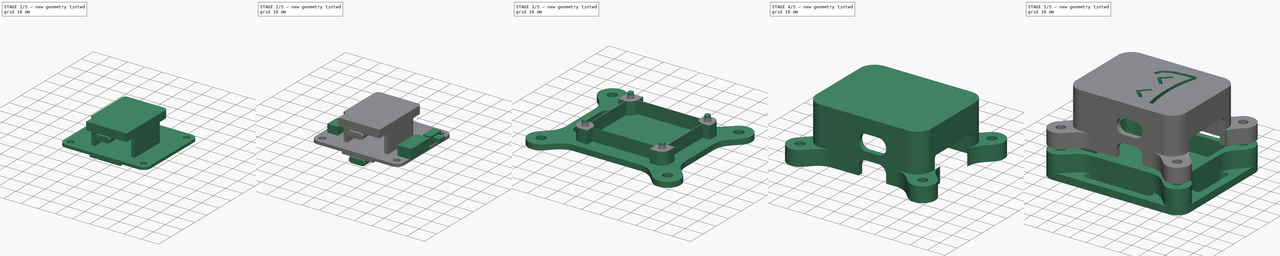
[diagram: build sequence overview — one tinted view per stage of 5, left to right]
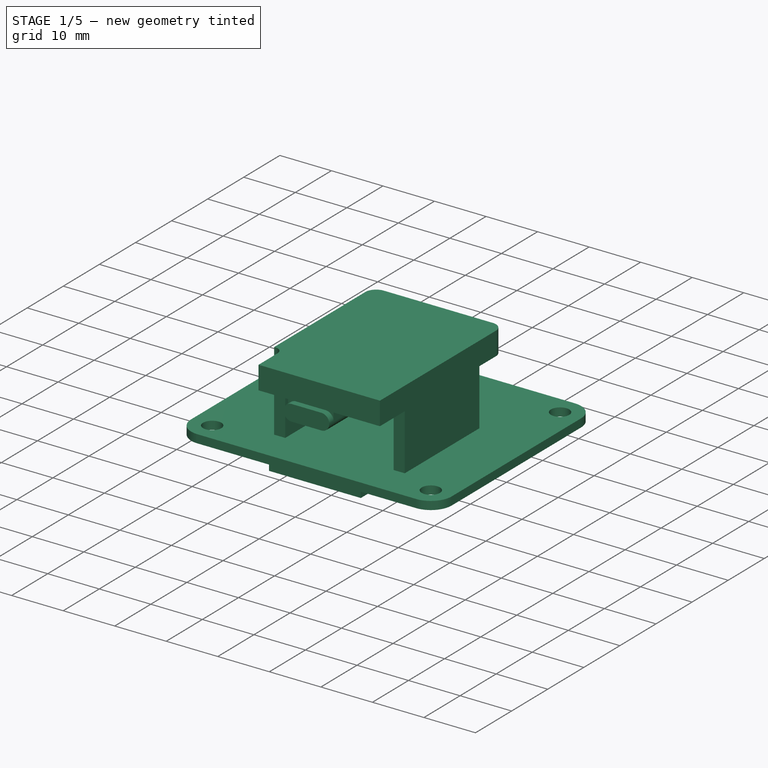
[diagram: stage 1 of 5 — iso view after this stage's code; geometry added in this stage tinted green]
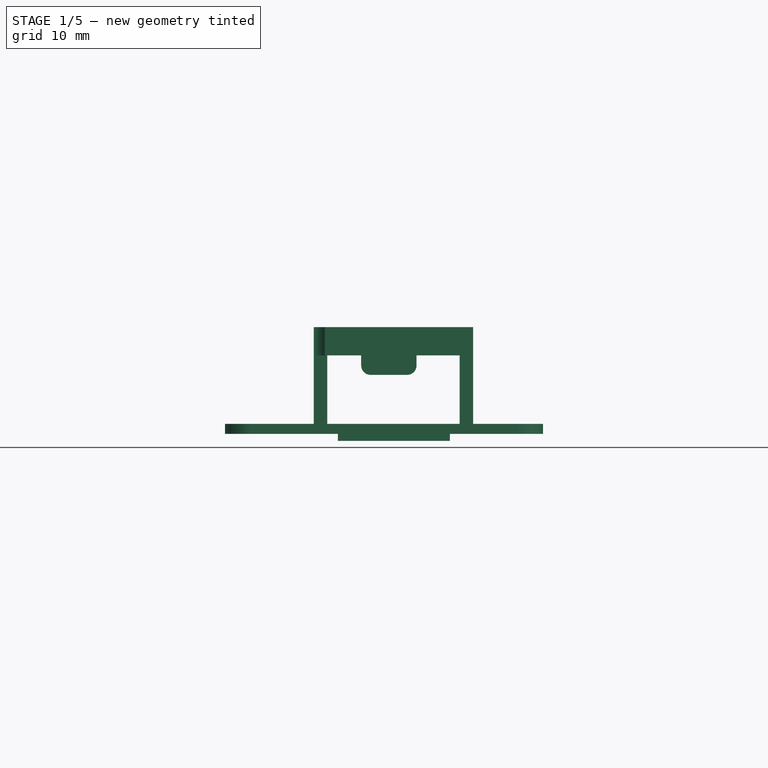
[diagram: stage 1 of 5 — front view after this stage's code; geometry added in this stage tinted green]
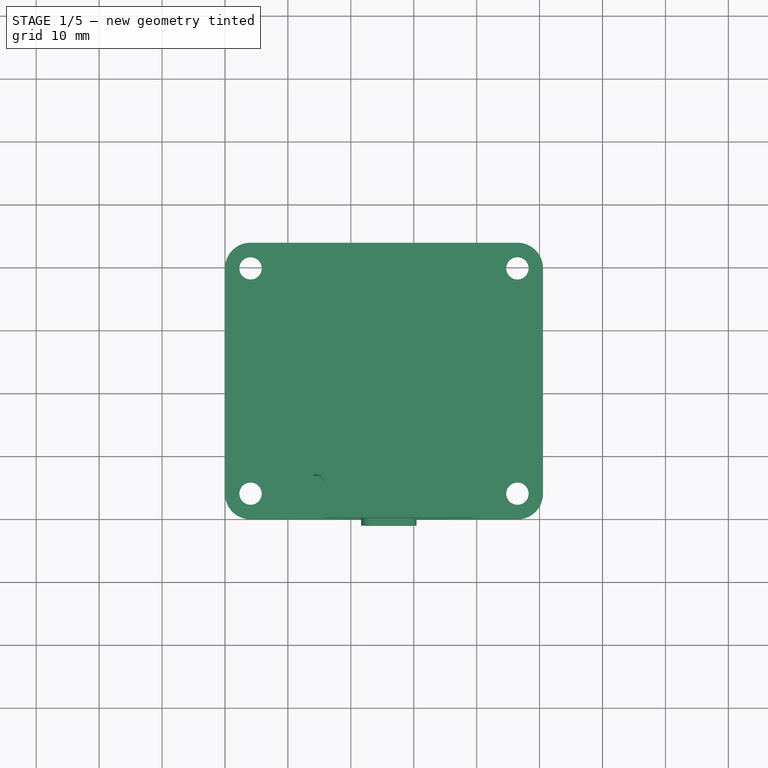
[diagram: stage 1 of 5 — top view after this stage's code; geometry added in this stage tinted green]
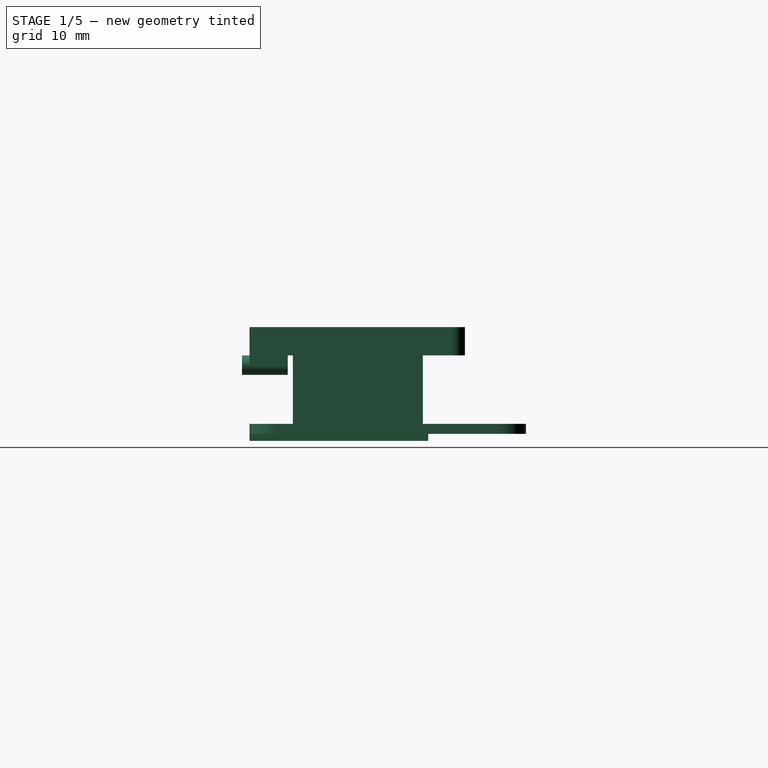
[diagram: stage 1 of 5 — right view after this stage's code; geometry added in this stage tinted green]
FCSTD DOCUMENT  (FreeCAD 0.21R33771 (Git))
Label: case
License: All rights reserved
LicenseURL: https://en.wikipedia.org/wiki/All_rights_reserved
objects: Sketcher::SketchObject×26, PartDesign::Pad×20, PartDesign::Pocket×7, PartDesign::ShapeBinder×7, PartDesign::Body×4, Part::Feature×3, PartDesign::Fillet×2, PartDesign::Plane×1, Part::FeaturePython×1
note: 100 computed .brp shape members not serialized (recipe doc carries the construction recipe); baked Part::Feature solids carry a one-line shape summary decoded from their .brp

FEATURE [Sketcher::SketchObject] Sketch  label="MainPCB"
  FullyConstrained = true
  MapMode = 5
  Support = -> [XY_Plane001]
  sketch-geometry (12):
    g0: LineSegment StartX=4.064 StartY=0 StartZ=0 EndX=46.482 EndY=0 EndZ=0
    g1: LineSegment StartX=50.546 StartY=4.064 StartZ=0 EndX=50.546 EndY=39.878 EndZ=0
    g2: LineSegment StartX=46.482 StartY=43.942 StartZ=0 EndX=4.064 EndY=43.942 EndZ=0
    g3: LineSegment StartX=0 StartY=39.878 StartZ=0 EndX=0 EndY=4.064 EndZ=0
    g4: ArcOfCircle CenterX=4.064 CenterY=39.878 CenterZ=0 NormalX=0 NormalY=0 NormalZ=1 AngleXU=0 Radius=4.064 StartAngle=1.5708 EndAngle=3.14159
    g5: ArcOfCircle CenterX=46.482 CenterY=39.878 CenterZ=0 NormalX=0 NormalY=0 NormalZ=1 AngleXU=0 Radius=4.064 StartAngle=0 EndAngle=1.5708
    g6: ArcOfCircle CenterX=46.482 CenterY=4.064 CenterZ=0 NormalX=0 NormalY=0 NormalZ=1 AngleXU=0 Radius=4.064 StartAngle=4.71239 EndAngle=6.28319
    g7: ArcOfCircle CenterX=4.064 CenterY=4.064 CenterZ=0 NormalX=0 NormalY=0 NormalZ=1 AngleXU=0 Radius=4.064 StartAngle=3.14159 EndAngle=4.71239
    g8: Circle CenterX=4.064 CenterY=39.878 CenterZ=0 NormalX=0 NormalY=0 NormalZ=1 AngleXU=0 Radius=1.778
    g9: Circle CenterX=46.482 CenterY=39.878 CenterZ=0 NormalX=0 NormalY=0 NormalZ=1 AngleXU=0 Radius=1.778
    g10: Circle CenterX=46.482 CenterY=4.064 CenterZ=0 NormalX=0 NormalY=0 NormalZ=1 AngleXU=0 Radius=1.778
    g11: Circle CenterX=4.064 CenterY=4.064 CenterZ=0 NormalX=0 NormalY=0 NormalZ=1 AngleXU=0 Radius=1.778
  constraints (28):
    c: Horizontal(g0)
    c: Horizontal(g2)
    c: Vertical(g1)
    c: Vertical(g3)
    c: Tangent(g3,g4) = -1.5708
    c: Tangent(g2,g4) = -1.5708
    c: Distance(g4,g2) = 4.064
    c: Tangent(g2,g5) = -1.5708
    c: Tangent(g1,g5) = -1.5708
    c: Tangent(g1,g6) = -1.5708
    c: Tangent(g0,g6) = -1.5708
    c: Tangent(g0,g7) = -1.5708
    c: Tangent(g3,g7) = -1.5708
    c: Distance(g5,g2) = 4.064
    c: Distance(g7,g0) = 4.064
    c: Distance(g6,g0) = 4.064
    c: Distance(g2,g0) = 43.942
    c: Distance(g3,g1) = 50.546
    c: Coincident(g8,g4)
    c: Coincident(g9,g5)
    c: Coincident(g10,g6)
    c: Coincident(g11,g7)
    c: Radius(g9) = 1.778
    c: Radius(g8) = 1.778
    c: Radius(g11) = 1.778
    c: Radius(g10) = 1.778
    c: DistanceX(g-1,g3) = 0
    c: DistanceY(g-1,g0) = 0
FEATURE [PartDesign::Pad] Pad  label="MainPCB.Pad"
  Direction = (0,0,1)
  Length = 1.6
  Length2 = 10
  Profile = -> Sketch
  ReferenceAxis = -> Sketch [N_Axis]
  Type = 0
FEATURE [Sketcher::SketchObject] Sketch001  label="D1Header"
  ExternalGeometry = -> [Pad]
  FullyConstrained = true
  MapMode = 5
  Placement = pos=(0,0,1.6) rot=(0,0,1;0rad)
  Support = -> [Pad]
  sketch-geometry (8):
    g0: LineSegment StartX=14.1 StartY=27.54 StartZ=0 EndX=14.1 EndY=6.88 EndZ=0
    g1: LineSegment StartX=16.26 StartY=27.54 StartZ=0 EndX=16.26 EndY=6.88 EndZ=0
    g2: LineSegment StartX=37.286 StartY=27.54 StartZ=0 EndX=37.286 EndY=6.88 EndZ=0
    g3: LineSegment StartX=39.446 StartY=27.54 StartZ=0 EndX=39.446 EndY=6.88 EndZ=0
    g4: LineSegment StartX=37.286 StartY=27.54 StartZ=0 EndX=39.446 EndY=27.54 EndZ=0
    g5: LineSegment StartX=39.446 StartY=6.88 StartZ=0 EndX=37.286 EndY=6.88 EndZ=0
    g6: LineSegment StartX=16.26 StartY=6.88 StartZ=0 EndX=14.1 EndY=6.88 EndZ=0
    g7: LineSegment StartX=14.1 StartY=27.54 StartZ=0 EndX=16.26 EndY=27.54 EndZ=0
  constraints (24):
    c: Vertical(g0)
    c: Vertical(g1)
    c: Vertical(g2)
    c: Vertical(g3)
    c: Coincident(g4,g2)
    c: Coincident(g4,g3)
    c: Coincident(g5,g3)
    c: Coincident(g5,g2)
    c: Coincident(g6,g1)
    c: Coincident(g6,g0)
    c: Horizontal(g6)
    c: Horizontal(g5)
    c: Horizontal(g4)
    c: Distance(g0,g-3) = 14.1
    c: Distance(g3,g-5) = 11.1
    c: Distance(g4) = 2.16
    c: Distance(g1) = 20.66
    c: Distance(g2) = 20.66
    c: Distance(g0,g-1) = 6.88
    c: Distance(g2,g-4) = 6.88
    c: Coincident(g7,g0)
    c: Coincident(g7,g1)
    c: Horizontal(g7)
    c: DistanceX(g0,g1) = 2.16
FEATURE [PartDesign::Pad] Pad001  label="D1Header.Pad"
  BaseFeature = -> Pad
  Direction = (0,0,1)
  Length = 10.88
  Length2 = 10
  Profile = -> Sketch001
  ReferenceAxis = -> Sketch001 [N_Axis]
  Type = 0
  expr: Length = 8.34 mm + 2.54 mm
FEATURE [Sketcher::SketchObject] Sketch002  label="D1Board"
  ExternalGeometry = -> [Pad001]
  FullyConstrained = true
  MapMode = 5
  Placement = pos=(0,0,12.48) rot=(0,0,1;0rad)
  Support = -> [Pad001]
  sketch-geometry (12):
    g0: LineSegment StartX=14.1 StartY=6.88 StartZ=0 EndX=14.1 EndY=32.15 EndZ=0
    g1: LineSegment StartX=14.1 StartY=6.88 StartZ=0 EndX=14.3 EndY=6.88 EndZ=0
    g2: LineSegment StartX=15.9 StartY=5.28 StartZ=0 EndX=15.9 EndY=0 EndZ=0
    g3: LineSegment StartX=39.446 StartY=0 StartZ=0 EndX=39.446 EndY=32.15 EndZ=0
    g4: LineSegment StartX=15.9 StartY=0 StartZ=0 EndX=39.446 EndY=0 EndZ=0
    g5: LineSegment StartX=16.2 StartY=34.25 StartZ=0 EndX=37.346 EndY=34.25 EndZ=0
    g6: ArcOfCircle CenterX=14.3 CenterY=5.28 CenterZ=0 NormalX=0 NormalY=0 NormalZ=1 AngleXU=0 Radius=1.6 StartAngle=0 EndAngle=1.5708
    g7: GeomPoint X=15.9 Y=6.88 Z=0
    g8: ArcOfCircle CenterX=16.2 CenterY=32.15 CenterZ=0 NormalX=0 NormalY=0 NormalZ=1 AngleXU=0 Radius=2.1 StartAngle=1.5708 EndAngle=3.14159
    g9: GeomPoint X=14.1 Y=34.25 Z=0
    g10: ArcOfCircle CenterX=37.346 CenterY=32.15 CenterZ=0 NormalX=0 NormalY=0 NormalZ=1 AngleXU=0 Radius=2.1 StartAngle=4.04e-13 EndAngle=1.5708
    g11: GeomPoint X=39.446 Y=34.25 Z=0
  constraints (29):
    c: Vertical(g0)
    c: Coincident(g0,g-3)
    c: Coincident(g1,g0)
    c: Horizontal(g1)
    c: Distance(g1,g7) = 1.8
    c: PointOnObject(g2,g-5)
    c: Vertical(g2)
    c: PointOnObject(g3,g-5)
    c: Vertical(g3)
    c: PointOnObject(g-4,g3)
    c: Coincident(g4,g2)
    c: Coincident(g4,g3)
    c: Horizontal(g5)
    c: PointOnObject(g7,g1)
    c: PointOnObject(g7,g2)
    c: Tangent(g1,g6) = 1.5708
    c: Tangent(g2,g6) = 1.5708
    c: DistanceX(g0,g6) = 0.2
    c: PointOnObject(g9,g0)
    c: PointOnObject(g9,g5)
    c: Tangent(g0,g8) = 1.5708
    c: Tangent(g5,g8) = 1.5708
    c: PointOnObject(g11,g3)
    c: PointOnObject(g11,g5)
    c: Tangent(g3,g10) = -1.5708
    c: Tangent(g5,g10) = 1.5708
    c: Radius(g8) = 2.1
    c: Radius(g10) = 2.1
    c: Distance(g5,g4) = 34.25
FEATURE [PartDesign::Pad] Pad002  label="D1Board.Pad"
  BaseFeature = -> Pad001
  Direction = (0,0,1)
  Length = 4.48
  Length2 = 10
  Profile = -> Sketch002
  ReferenceAxis = -> Sketch002 [N_Axis]
  Type = 0
FEATURE [Sketcher::SketchObject] Sketch003  label="D1Port"
  ExternalGeometry = -> [Pad002]
  FullyConstrained = true
  MapMode = 5
  Placement = pos=(0,0,12.48) rot=(1,0,0;3.14159rad)
  Support = -> [Pad002]
  sketch-geometry (4):
    g0: LineSegment StartX=21.646 StartY=-6.08 StartZ=0 EndX=30.446 EndY=-6.08 EndZ=0
    g1: LineSegment StartX=30.446 StartY=-6.08 StartZ=0 EndX=30.446 EndY=1.2 EndZ=0
    g2: LineSegment StartX=30.446 StartY=1.2 StartZ=0 EndX=21.646 EndY=1.2 EndZ=0
    g3: LineSegment StartX=21.646 StartY=-6.08 StartZ=0 EndX=21.646 EndY=1.2 EndZ=0
  constraints (12):
    c: Horizontal(g0)
    c: Distance(g0) = 8.8
    c: Coincident(g1,g0)
    c: Vertical(g1)
    c: Distance(g1) = 7.28
    c: Coincident(g2,g1)
    c: Horizontal(g2)
    c: Coincident(g3,g0)
    c: Coincident(g3,g2)
    c: Vertical(g3)
    c: Distance(g2,g-5) = 1.2
    c: Distance(g-5,g1) = 9
FEATURE [PartDesign::Pad] Pad003  label="D1Port.Pad"
  BaseFeature = -> Pad002
  Direction = (0,0,-1)
  Length = 3.1
  Length2 = 10
  Profile = -> Sketch003
  ReferenceAxis = -> Sketch003 [N_Axis]
  Type = 0
FEATURE [PartDesign::Fillet] Fillet  label="D1Port.Fillet"
  Base = -> Pad003 [Edge101,Edge96,Edge97,Edge102]
  BaseFeature = -> Pad003
  Radius = 1.5
  SupportTransform = false
  UseAllEdges = false
FEATURE [Sketcher::SketchObject] Sketch004  label="ChargingBoard"
  ExternalGeometry = -> [Fillet]
  FullyConstrained = true
  MapMode = 5
  Placement = pos=(0,0,0) rot=(1,0,0;3.14159rad)
  Support = -> [Fillet]
  sketch-geometry (4):
    g0: LineSegment StartX=17.937 StartY=0 StartZ=0 EndX=17.937 EndY=-28.4 EndZ=0
    g1: LineSegment StartX=35.737 StartY=0 StartZ=0 EndX=35.737 EndY=-28.4 EndZ=0
    g2: LineSegment StartX=35.737 StartY=-28.4 StartZ=0 EndX=17.937 EndY=-28.4 EndZ=0
    g3: LineSegment StartX=17.937 StartY=0 StartZ=0 EndX=35.737 EndY=0 EndZ=0
  constraints (12):
    c: PointOnObject(g0,g-3)
    c: Vertical(g0)
    c: PointOnObject(g1,g-3)
    c: Vertical(g1)
    c: Coincident(g2,g1)
    c: Coincident(g2,g0)
    c: Horizontal(g2)
    c: Distance(g2) = 17.8
    c: Distance(g0) = 28.4
    c: Coincident(g3,g0)
    c: Coincident(g3,g1)
    c: Distance(g-4,g1) = 14.809
FEATURE [PartDesign::Pad] Pad004  label="ChargingBoard.Pad"
  BaseFeature = -> Fillet
  Direction = (0,0,-1)
  Length = 1.1
  Length2 = 10
  Profile = -> Sketch004
  ReferenceAxis = -> Sketch004 [N_Axis]
  Type = 0
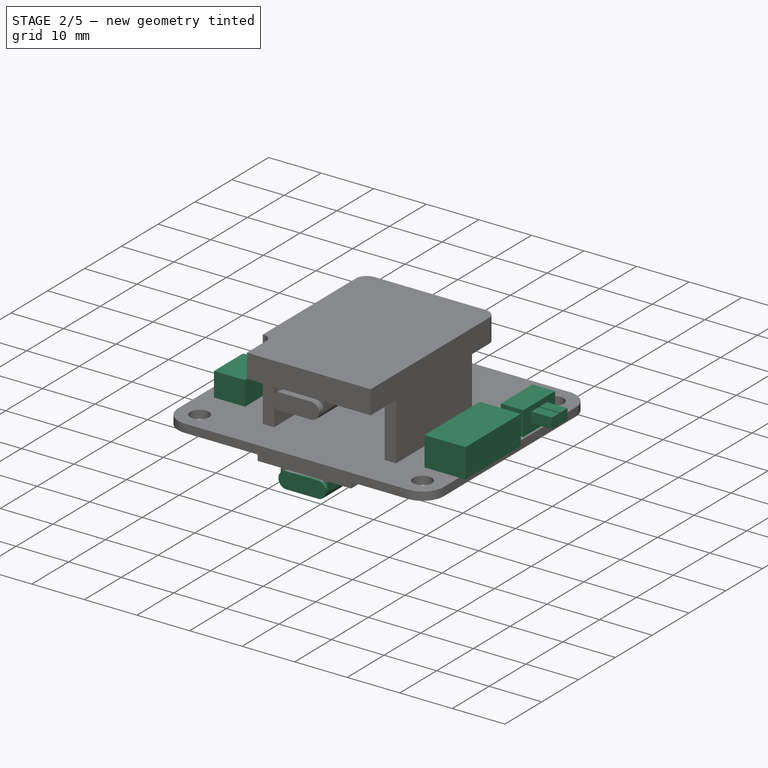
[diagram: stage 2 of 5 — iso view after this stage's code; geometry added in this stage tinted green]
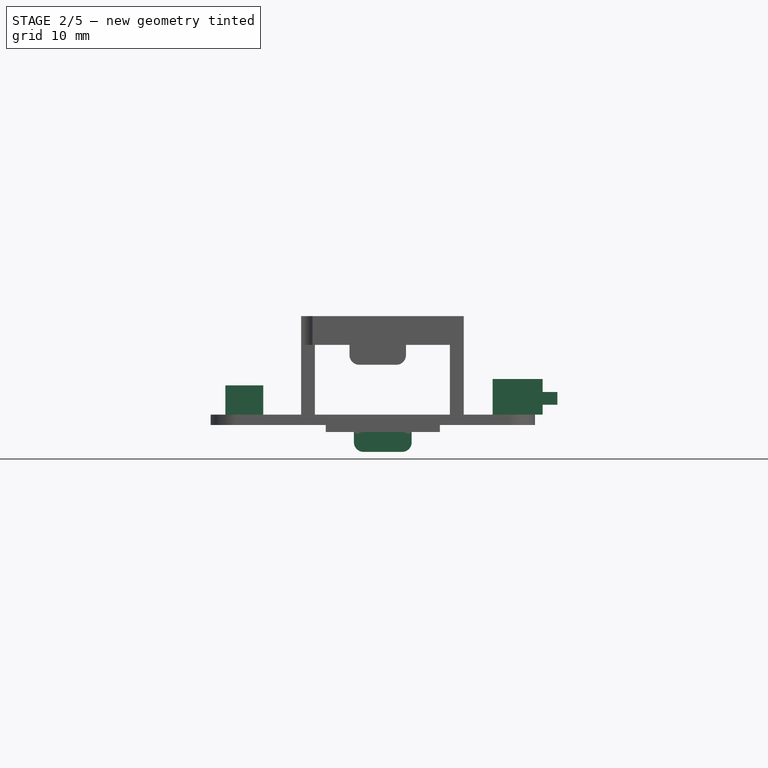
[diagram: stage 2 of 5 — front view after this stage's code; geometry added in this stage tinted green]
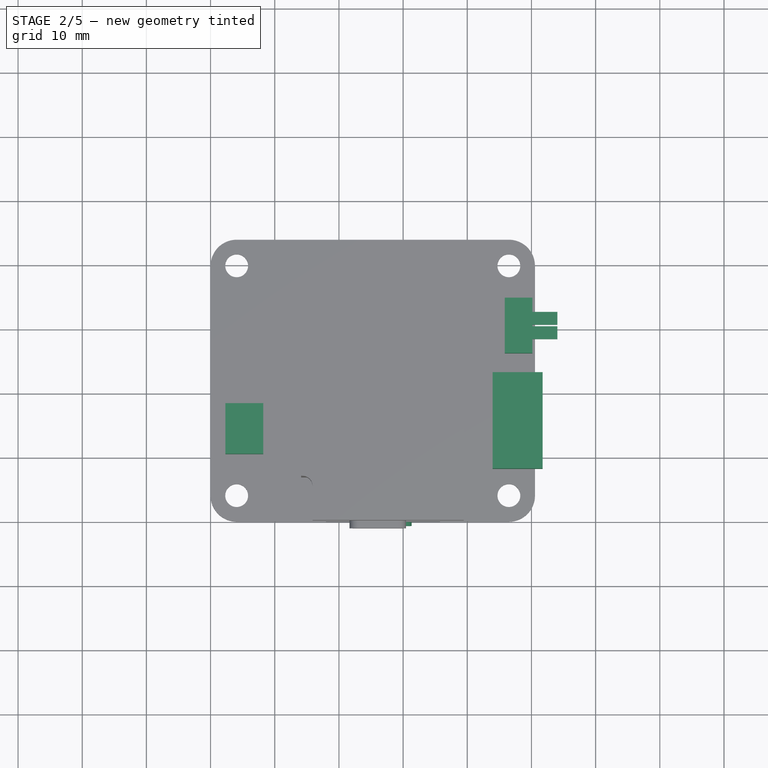
[diagram: stage 2 of 5 — top view after this stage's code; geometry added in this stage tinted green]
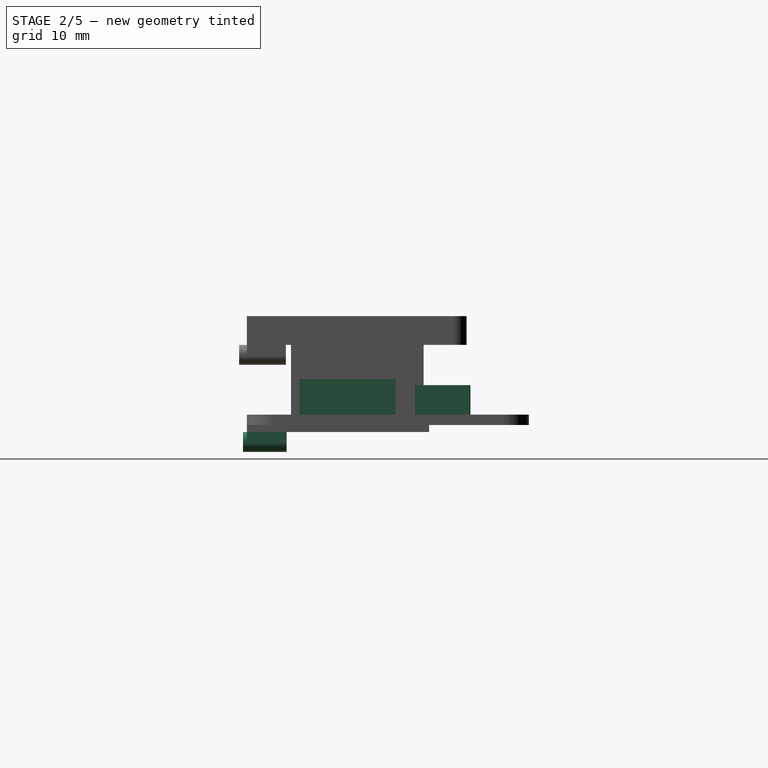
[diagram: stage 2 of 5 — right view after this stage's code; geometry added in this stage tinted green]
FEATURE [Sketcher::SketchObject] Sketch005  label="ChargingPort"
  ExternalGeometry = -> [Pad004]
  FullyConstrained = true
  MapMode = 5
  Placement = pos=(0,0,-1.1) rot=(1,0,0;3.14159rad)
  Support = -> [Pad004]
  sketch-geometry (6):
    g0: LineSegment StartX=22.337 StartY=-6.2 StartZ=0 EndX=22.337 EndY=0.6 EndZ=0
    g1: LineSegment StartX=22.337 StartY=-6.2 StartZ=0 EndX=31.337 EndY=-6.2 EndZ=0
    g2: LineSegment StartX=22.337 StartY=0.6 StartZ=0 EndX=31.337 EndY=0.6 EndZ=0
    g3: LineSegment StartX=31.337 StartY=0.6 StartZ=0 EndX=31.337 EndY=-6.2 EndZ=0
    g4: LineSegment StartX=17.937 StartY=0 StartZ=0 EndX=22.337 EndY=0 EndZ=0
    g5: LineSegment StartX=35.737 StartY=0 StartZ=0 EndX=31.337 EndY=0 EndZ=0
  constraints (18):
    c: Vertical(g0)
    c: Distance(g0) = 6.8
    c: Coincident(g1,g0)
    c: Horizontal(g1)
    c: Distance(g1) = 9
    c: Coincident(g2,g0)
    c: Horizontal(g2)
    c: Coincident(g3,g2)
    c: Coincident(g3,g1)
    c: Vertical(g3)
    c: Distance(g2,g-4) = 0.6
    c: Coincident(g4,g-4)
    c: PointOnObject(g4,g0)
    c: Horizontal(g4)
    c: Coincident(g5,g-5)
    c: PointOnObject(g5,g3)
    c: Horizontal(g5)
    c: Equal(g5,g4)
FEATURE [PartDesign::Pad] Pad005  label="ChargingPort.Pad"
  BaseFeature = -> Pad004
  Direction = (0,0,-1)
  Length = 3.1
  Length2 = 10
  Profile = -> Sketch005
  ReferenceAxis = -> Sketch005 [N_Axis]
  Type = 0
FEATURE [PartDesign::Fillet] Fillet001  label="ChargingPort.Fillet"
  Base = -> Pad005 [Edge137,Edge139,Edge142,Edge146]
  BaseFeature = -> Pad005
  Radius = 1.5
  SupportTransform = false
  UseAllEdges = false
FEATURE [Sketcher::SketchObject] Sketch006  label="JST-XH"
  ExternalGeometry = -> [Fillet001]
  FullyConstrained = true
  MapMode = 5
  Placement = pos=(0,0,1.6) rot=(0,0,1;0rad)
  Support = -> [Fillet001]
  sketch-geometry (4):
    g0: LineSegment StartX=43.946 StartY=8.2 StartZ=0 EndX=51.746 EndY=8.2 EndZ=0
    g1: LineSegment StartX=43.946 StartY=8.2 StartZ=0 EndX=43.946 EndY=23.2 EndZ=0
    g2: LineSegment StartX=43.946 StartY=23.2 StartZ=0 EndX=51.746 EndY=23.2 EndZ=0
    g3: LineSegment StartX=51.746 StartY=23.2 StartZ=0 EndX=51.746 EndY=8.2 EndZ=0
  constraints (12):
    c: Horizontal(g0)
    c: Distance(g-3,g0) = 8.2
    c: Distance(g0) = 7.8
    c: Coincident(g1,g0)
    c: Vertical(g1)
    c: Distance(g1) = 15
    c: Coincident(g2,g1)
    c: Horizontal(g2)
    c: Coincident(g3,g2)
    c: Coincident(g3,g0)
    c: Vertical(g3)
    c: Distance(g0,g-5) = 1.2
FEATURE [PartDesign::Pad] Pad006  label="JST-XH.Pad"
  BaseFeature = -> Fillet001
  Direction = (0,0,1)
  Length = 5.56
  Length2 = 10
  Profile = -> Sketch006
  ReferenceAxis = -> Sketch006 [N_Axis]
  Type = 0
FEATURE [Sketcher::SketchObject] Sketch007  label="SwitchBody"
  ExternalGeometry = -> [Pad006]
  FullyConstrained = true
  MapMode = 5
  Placement = pos=(0,0,1.6) rot=(0,0,1;0rad)
  Support = -> [Pad006]
  sketch-geometry (4):
    g0: LineSegment StartX=45.846 StartY=34.842 StartZ=0 EndX=45.846 EndY=26.202 EndZ=0
    g1: LineSegment StartX=45.846 StartY=34.842 StartZ=0 EndX=50.146 EndY=34.842 EndZ=0
    g2: LineSegment StartX=50.146 StartY=34.842 StartZ=0 EndX=50.146 EndY=26.202 EndZ=0
    g3: LineSegment StartX=50.146 StartY=26.202 StartZ=0 EndX=45.846 EndY=26.202 EndZ=0
  constraints (12):
    c: Vertical(g0)
    c: Distance(g0) = 8.64
    c: Coincident(g1,g0)
    c: Horizontal(g1)
    c: Distance(g-3,g1) = 9.1
    c: Distance(g1) = 4.3
    c: Coincident(g2,g1)
    c: Vertical(g2)
    c: Coincident(g3,g2)
    c: Coincident(g3,g0)
    c: Horizontal(g3)
    c: Distance(g1,g-4) = 0.4
FEATURE [PartDesign::Pad] Pad007  label="SwitchBody.Pad"
  BaseFeature = -> Pad006
  Direction = (0,0,1)
  Length = 4.6
  Length2 = 10
  Profile = -> Sketch007
  ReferenceAxis = -> Sketch007 [N_Axis]
  Type = 0
FEATURE [Sketcher::SketchObject] Sketch008  label="SwitchPositions"
  ExternalGeometry = -> [Pad007]
  FullyConstrained = true
  MapMode = 5
  Placement = pos=(50.146,0,0) rot=(0.57735,0.57735,0.57735;2.0944rad)
  Support = -> [Pad007]
  sketch-geometry (12):
    g0: LineSegment StartX=30.642 StartY=5.14 StartZ=0 EndX=32.642 EndY=5.14 EndZ=0
    g1: LineSegment StartX=32.642 StartY=5.14 StartZ=0 EndX=32.642 EndY=3.14 EndZ=0
    g2: LineSegment StartX=32.642 StartY=3.14 StartZ=0 EndX=30.642 EndY=3.14 EndZ=0
    g3: LineSegment StartX=30.642 StartY=3.14 StartZ=0 EndX=30.642 EndY=5.14 EndZ=0
    g4: LineSegment StartX=28.402 StartY=5.14 StartZ=0 EndX=28.402 EndY=3.14 EndZ=0
    g5: LineSegment StartX=28.402 StartY=5.14 StartZ=0 EndX=30.402 EndY=5.14 EndZ=0
    g6: LineSegment StartX=30.402 StartY=5.14 StartZ=0 EndX=30.402 EndY=3.14 EndZ=0
    g7: LineSegment StartX=30.402 StartY=3.14 StartZ=0 EndX=28.402 EndY=3.14 EndZ=0
    g8: LineSegment StartX=32.642 StartY=5.14 StartZ=0 EndX=34.842 EndY=5.14 EndZ=0
    g9: LineSegment StartX=28.402 StartY=5.14 StartZ=0 EndX=26.202 EndY=5.14 EndZ=0
    g10: LineSegment StartX=32.642 StartY=5.14 StartZ=0 EndX=32.642 EndY=6.2 EndZ=0
    g11: LineSegment StartX=28.402 StartY=5.14 StartZ=0 EndX=28.402 EndY=6.2 EndZ=0
  constraints (36):
    c: Horizontal(g0)
    c: Coincident(g1,g0)
    c: Vertical(g1)
    c: Coincident(g2,g1)
    c: Horizontal(g2)
    c: Coincident(g3,g2)
    c: Coincident(g3,g0)
    c: Vertical(g3)
    c: Vertical(g4)
    c: Coincident(g5,g4)
    c: Horizontal(g5)
    c: Coincident(g6,g5)
    c: Vertical(g6)
    c: Coincident(g7,g6)
    c: Coincident(g7,g4)
    c: Horizontal(g7)
    c: Equal(g6,g3)
    c: Equal(g5,g0)
    c: Coincident(g8,g0)
    c: PointOnObject(g8,g-5)
    c: Horizontal(g8)
    c: Coincident(g9,g4)
    c: PointOnObject(g9,g-3)
    c: Horizontal(g9)
    c: Distance(g8) = 2.2
    c: Equal(g9,g8)
    c: Equal(g1,g0)
    c: Coincident(g10,g0)
    c: PointOnObject(g10,g-4)
    c: Vertical(g10)
    c: Coincident(g11,g4)
    c: PointOnObject(g11,g-4)
    c: Vertical(g11)
    c: Distance(g10) = 1.06
    c: Equal(g11,g10)
    c: Distance(g1) = 2
FEATURE [PartDesign::Pad] Pad008  label="SwitchPos.Pad"
  BaseFeature = -> Pad007
  Direction = (1,0,0)
  Length = 3.9
  Length2 = 10
  Profile = -> Sketch008
  ReferenceAxis = -> Sketch008 [N_Axis]
  Type = 0
FEATURE [Sketcher::SketchObject] Sketch009  label="BatteryJST"
  ExternalGeometry = -> [Pad008]
  FullyConstrained = true
  MapMode = 5
  Placement = pos=(0,0,1.6) rot=(0,0,1;0rad)
  Support = -> [Pad008]
  sketch-geometry (4):
    g0: LineSegment StartX=8.2 StartY=10.5 StartZ=0 EndX=2.3 EndY=10.5 EndZ=0
    g1: LineSegment StartX=2.3 StartY=10.5 StartZ=0 EndX=2.3 EndY=18.4 EndZ=0
    g2: LineSegment StartX=2.3 StartY=18.4 StartZ=0 EndX=8.2 EndY=18.4 EndZ=0
    g3: LineSegment StartX=8.2 StartY=18.4 StartZ=0 EndX=8.2 EndY=10.5 EndZ=0
  constraints (12):
    c: Horizontal(g0)
    c: Distance(g-3,g0) = 10.5
    c: Distance(g0) = 5.9
    c: Coincident(g1,g0)
    c: Vertical(g1)
    c: Distance(g1) = 7.9
    c: Horizontal(g2)
    c: Coincident(g3,g2)
    c: Coincident(g3,g0)
    c: Vertical(g3)
    c: Distance(g0,g-4) = 2.3
    c: Coincident(g2,g1)
FEATURE [PartDesign::Pad] Pad009  label="BatteryJST.Pad"
  BaseFeature = -> Pad008
  Direction = (0,0,1)
  Length = 4.56
  Length2 = 10
  Profile = -> Sketch009
  ReferenceAxis = -> Sketch009 [N_Axis]
  Type = 0
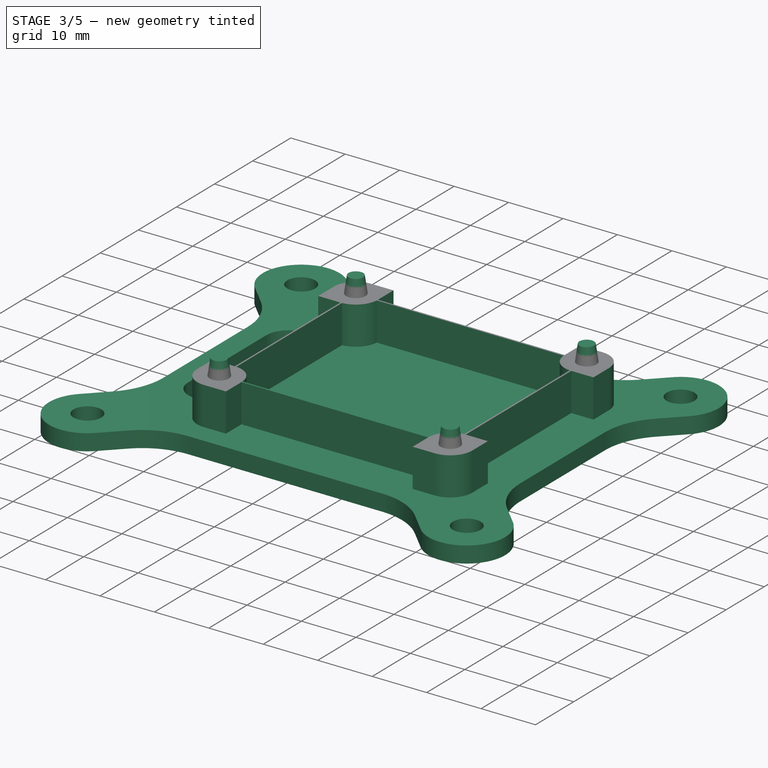
[diagram: stage 3 of 5 — iso view after this stage's code; geometry added in this stage tinted green]
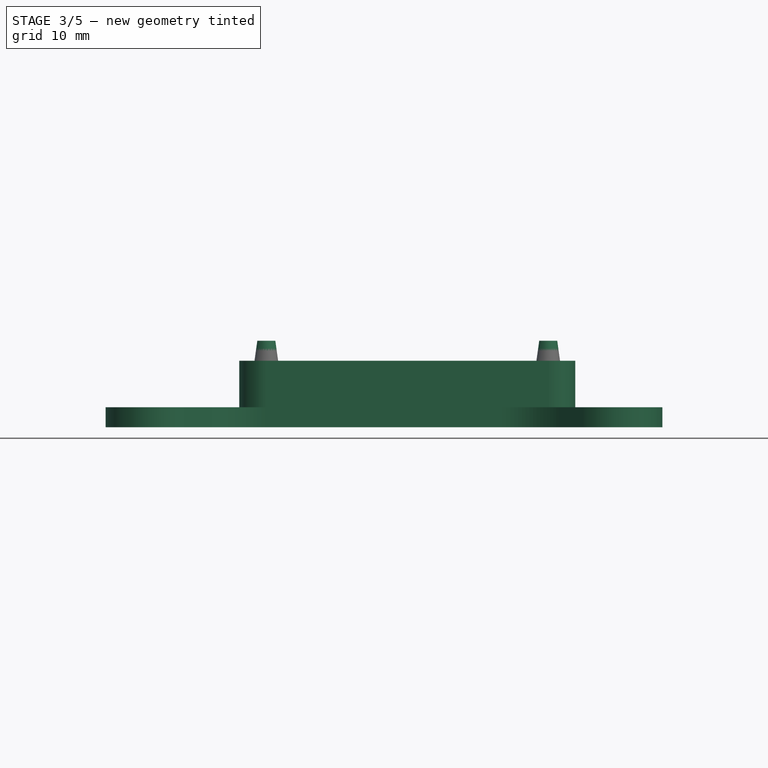
[diagram: stage 3 of 5 — front view after this stage's code; geometry added in this stage tinted green]
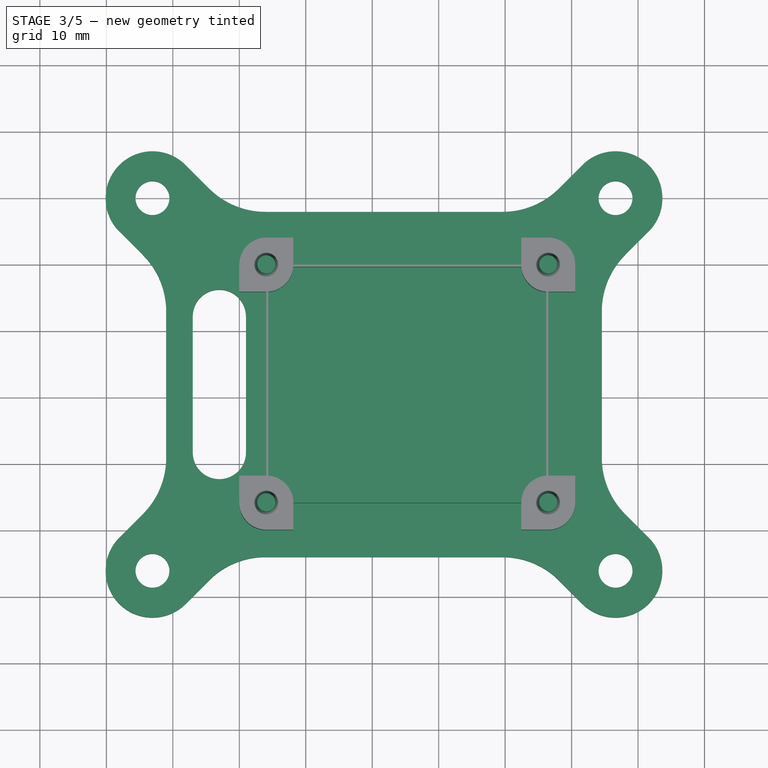
[diagram: stage 3 of 5 — top view after this stage's code; geometry added in this stage tinted green]
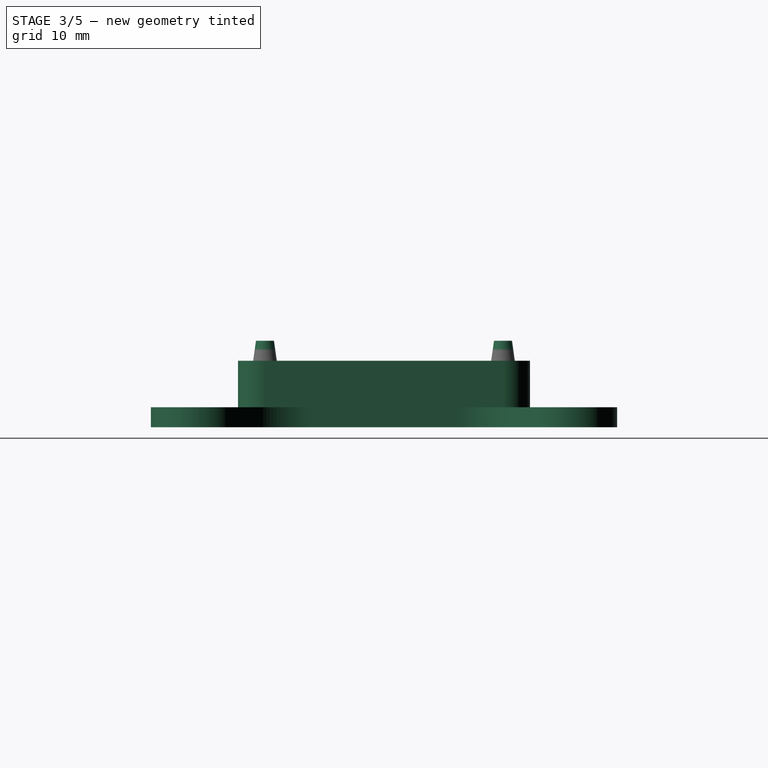
[diagram: stage 3 of 5 — right view after this stage's code; geometry added in this stage tinted green]
FEATURE [Sketcher::SketchObject] Sketch010  label="Passives"
  ExternalGeometry = -> [Pad009]
  FullyConstrained = true
  MapMode = 5
  Placement = pos=(0,0,1.6) rot=(0,0,1;0rad)
  Support = -> [Pad009]
  sketch-geometry (4):
    g0: LineSegment StartX=1.6 StartY=33.242 StartZ=0 EndX=11.6 EndY=33.242 EndZ=0
    g1: LineSegment StartX=11.6 StartY=33.242 StartZ=0 EndX=11.6 EndY=23.542 EndZ=0
    g2: LineSegment StartX=11.6 StartY=23.542 StartZ=0 EndX=1.6 EndY=23.542 EndZ=0
    g3: LineSegment StartX=1.6 StartY=23.542 StartZ=0 EndX=1.6 EndY=33.242 EndZ=0
  constraints (12):
    c: Coincident(g0,g1)
    c: Coincident(g1,g2)
    c: Coincident(g2,g3)
    c: Coincident(g3,g0)
    c: Horizontal(g0)
    c: Horizontal(g2)
    c: Vertical(g1)
    c: Vertical(g3)
    c: Distance(g3) = 9.7
    c: Distance(g0) = 10
    c: Distance(g0,g-3) = 1.6
    c: Distance(g0,g-4) = 10.7
FEATURE [PartDesign::Pad] Pad010  label="Passives.Pad"
  BaseFeature = -> Pad009
  Direction = (0,0,1)
  Length = 2.78
  Length2 = 10
  Profile = -> Sketch010
  ReferenceAxis = -> Sketch010 [N_Axis]
  Type = 0
FEATURE [Sketcher::SketchObject] Sketch011  label="ChargingBoardComponents"
  ExternalGeometry = -> [Pad010]
  FullyConstrained = true
  MapMode = 5
  Placement = pos=(0,0,-1.1) rot=(1,0,0;3.14159rad)
  Support = -> [Pad010]
  sketch-geometry (4):
    g0: LineSegment StartX=17.937 StartY=-9.4 StartZ=0 EndX=35.737 EndY=-9.4 EndZ=0
    g1: LineSegment StartX=35.737 StartY=-9.4 StartZ=0 EndX=35.737 EndY=-28.4 EndZ=0
    g2: LineSegment StartX=35.737 StartY=-28.4 StartZ=0 EndX=17.937 EndY=-28.4 EndZ=0
    g3: LineSegment StartX=17.937 StartY=-28.4 StartZ=0 EndX=17.937 EndY=-9.4 EndZ=0
  constraints (10):
    c: PointOnObject(g0,g-3)
    c: PointOnObject(g0,g-5)
    c: Horizontal(g0)
    c: Coincident(g1,g0)
    c: Coincident(g1,g-5)
    c: Coincident(g2,g1)
    c: Coincident(g2,g-4)
    c: Coincident(g3,g2)
    c: Coincident(g3,g0)
    c: Distance(g1) = 19
FEATURE [PartDesign::Pad] Pad011  label="ChgBoardComponents.Pad"
  BaseFeature = -> Pad010
  Direction = (0,0,-1)
  Length = 1.3
  Length2 = 10
  Profile = -> Sketch011
  ReferenceAxis = -> Sketch011 [N_Axis]
  Type = 0
FEATURE [PartDesign::Body] Body001  label="PCB"
  Group = -> [Sketch,Pad,Sketch001,Pad001,Sketch002,Pad002,Sketch003,Pad003,Fillet,Sketch004,Pad004,Sketch005,Pad005,Fillet001,Sketch006,Pad006,Sketch007,Pad007,Sketch008,Pad008,Sketch009,Pad009,Sketch010,Pad010,Sketch011,Pad011]
  Origin = -> Origin001
  Tip = -> Pad011
FEATURE [PartDesign::Plane] DatumPlane
  Length = 105.705
  MapMode = 5
  Placement = pos=(0,0,0) rot=(1,0,0;3.14159rad)
  ResizeMode = 0
  Support = -> [Pad011]
  Width = 99.1008
FEATURE [Sketcher::SketchObject] Sketch012  label="MountingFeet"
  FullyConstrained = true
  MapMode = 5
  Placement = pos=(0,0,0) rot=(1,0,0;3.14159rad)
  Support = -> [DatumPlane]
  sketch-geometry (48):
    g0: Circle CenterX=46.482 CenterY=-4.064 CenterZ=0 NormalX=0 NormalY=0 NormalZ=1 AngleXU=0 Radius=4.064
    g1: Circle CenterX=46.482 CenterY=-39.878 CenterZ=0 NormalX=0 NormalY=0 NormalZ=1 AngleXU=0 Radius=4.064
    g2: Circle CenterX=4.064 CenterY=-39.878 CenterZ=0 NormalX=0 NormalY=0 NormalZ=1 AngleXU=0 Radius=4.064
    g3: Circle CenterX=4.064 CenterY=-4.064 CenterZ=0 NormalX=0 NormalY=0 NormalZ=1 AngleXU=0 Radius=4.064
    g4: LineSegment StartX=0 StartY=-8.128 StartZ=0 EndX=4.064 EndY=-8.128 EndZ=0
    g5: LineSegment StartX=8.128 StartY=-4.064 StartZ=0 EndX=8.128 EndY=0 EndZ=0
    g6: LineSegment StartX=42.418 StartY=0 StartZ=0 EndX=42.418 EndY=-4.064 EndZ=0
    g7: LineSegment StartX=46.482 StartY=-8.128 StartZ=0 EndX=50.546 EndY=-8.128 EndZ=0
    g8: LineSegment StartX=50.546 StartY=-35.814 StartZ=0 EndX=46.482 EndY=-35.814 EndZ=0
    g9: LineSegment StartX=42.418 StartY=-39.878 StartZ=0 EndX=42.418 EndY=-43.942 EndZ=0
    g10: LineSegment StartX=0 StartY=-35.814 StartZ=0 EndX=4.064 EndY=-35.814 EndZ=0
    g11: LineSegment StartX=8.128 StartY=-39.878 StartZ=0 EndX=8.128 EndY=-43.942 EndZ=0
    g12: LineSegment StartX=0 StartY=-8.128 StartZ=0 EndX=0 EndY=-4.064 EndZ=0
    g13: LineSegment StartX=8.128 StartY=0 StartZ=0 EndX=4.064 EndY=0 EndZ=0
    g14: ArcOfCircle CenterX=4.064 CenterY=-4.064 CenterZ=0 NormalX=0 NormalY=0 NormalZ=1 AngleXU=0 Radius=4.064 StartAngle=1.5708 EndAngle=3.14159
    g15: LineSegment StartX=50.546 StartY=-8.128 StartZ=0 EndX=50.546 EndY=-4.064 EndZ=0
    g16: LineSegment StartX=42.418 StartY=0 StartZ=0 EndX=46.482 EndY=0 EndZ=0
    g17: ArcOfCircle CenterX=46.482 CenterY=-4.064 CenterZ=0 NormalX=0 NormalY=0 NormalZ=1 AngleXU=0 Radius=4.064 StartAngle=0 EndAngle=1.5708
    g18: LineSegment StartX=8.128 StartY=-43.942 StartZ=0 EndX=4.064 EndY=-43.942 EndZ=0
    g19: LineSegment StartX=0 StartY=-35.814 StartZ=0 EndX=0 EndY=-39.878 EndZ=0
    g20: ArcOfCircle CenterX=4.064 CenterY=-39.878 CenterZ=0 NormalX=0 NormalY=0 NormalZ=1 AngleXU=0 Radius=4.064 StartAngle=3.14159 EndAngle=4.71239
    g21: LineSegment StartX=50.546 StartY=-35.814 StartZ=0 EndX=50.546 EndY=-39.878 EndZ=0
    g22: LineSegment StartX=46.482 StartY=-43.942 StartZ=0 EndX=42.418 EndY=-43.942 EndZ=0
    g23: ArcOfCircle CenterX=46.482 CenterY=-39.878 CenterZ=0 NormalX=0 NormalY=0 NormalZ=1 AngleXU=0 Radius=4.064 StartAngle=4.71239 EndAngle=6.28319
    g24: LineSegment StartX=8.128 StartY=0 StartZ=0 EndX=42.418 EndY=0 EndZ=0
    g25: LineSegment StartX=0 StartY=-8.128 StartZ=0 EndX=0 EndY=-35.814 EndZ=0
    g26: LineSegment StartX=8.128 StartY=-43.942 StartZ=0 EndX=42.418 EndY=-43.942 EndZ=0
    g27: LineSegment StartX=50.546 StartY=-35.814 StartZ=0 EndX=50.546 EndY=-8.128 EndZ=0
    g28: LineSegment StartX=8.128 StartY=-4.064 StartZ=0 EndX=42.418 EndY=-4.064 EndZ=0
    g29: LineSegment StartX=46.482 StartY=-35.814 StartZ=0 EndX=46.482 EndY=-8.128 EndZ=0
    g30: LineSegment StartX=4.064 StartY=-35.814 StartZ=0 EndX=4.064 EndY=-8.128 EndZ=0
    g31: LineSegment StartX=8.128 StartY=-39.878 StartZ=0 EndX=42.418 EndY=-39.878 EndZ=0
    g32: ArcOfCircle CenterX=4.064 CenterY=-4.064 CenterZ=0 NormalX=0 NormalY=0 NormalZ=1 AngleXU=0 Radius=4.064 StartAngle=4.78622 EndAngle=6.20935
    g33: LineSegment StartX=8.11693 StartY=-4.3638 StartZ=0 EndX=8.128 EndY=-4.064 EndZ=0
    g34: LineSegment StartX=4.3638 StartY=-8.11693 StartZ=0 EndX=4.064 EndY=-8.128 EndZ=0
    g35: ArcOfCircle CenterX=46.482 CenterY=-4.064 CenterZ=0 NormalX=0 NormalY=0 NormalZ=1 AngleXU=0 Radius=4.064 StartAngle=3.21543 EndAngle=4.63855
    g36: ArcOfCircle CenterX=46.482 CenterY=-39.878 CenterZ=0 NormalX=0 NormalY=0 NormalZ=1 AngleXU=0 Radius=4.064 StartAngle=1.64463 EndAngle=3.06776
    g37: ArcOfCircle CenterX=4.064 CenterY=-39.878 CenterZ=0 NormalX=0 NormalY=0 NormalZ=1 AngleXU=0 Radius=4.064 StartAngle=0.0738357 EndAngle=1.49696
    g38: LineSegment StartX=42.4291 StartY=-4.3638 StartZ=0 EndX=42.418 EndY=-4.064 EndZ=0
    g39: LineSegment StartX=46.1822 StartY=-8.11693 StartZ=0 EndX=46.482 EndY=-8.128 EndZ=0
    g40: LineSegment StartX=46.482 StartY=-35.814 StartZ=0 EndX=46.1822 EndY=-35.8251 EndZ=0
    g41: LineSegment StartX=42.4291 StartY=-39.5782 StartZ=0 EndX=42.418 EndY=-39.878 EndZ=0
    g42: LineSegment StartX=8.128 StartY=-39.878 StartZ=0 EndX=8.11693 EndY=-39.5782 EndZ=0
    g43: LineSegment StartX=4.3638 StartY=-35.8251 StartZ=0 EndX=4.064 EndY=-35.814 EndZ=0
    g44: LineSegment StartX=4.3638 StartY=-8.11693 StartZ=0 EndX=4.3638 EndY=-35.8251 EndZ=0
    g45: LineSegment StartX=8.11693 StartY=-39.5782 StartZ=0 EndX=42.4291 EndY=-39.5782 EndZ=0
    g46: LineSegment StartX=46.1822 StartY=-35.8251 StartZ=0 EndX=46.1822 EndY=-8.11693 EndZ=0
    g47: LineSegment StartX=42.4291 StartY=-4.3638 StartZ=0 EndX=8.11693 EndY=-4.3638 EndZ=0
  constraints (125):
    c: Horizontal(g4)
    c: Tangent(g4,g3)
    c: Vertical(g5)
    c: Vertical(g6)
    c: Horizontal(g7)
    c: Horizontal(g8)
    c: Vertical(g9)
    c: Tangent(g8,g1)
    c: Horizontal(g10)
    c: Tangent(g10,g2)
    c: Vertical(g11)
    c: Coincident(g12,g4)
    c: Coincident(g13,g5)
    c: Tangent(g12,g14) = 1.5708
    c: Tangent(g13,g14) = -1.5708
    c: Vertical(g12)
    c: Coincident(g15,g7)
    c: Vertical(g15)
    c: Coincident(g16,g6)
    c: Tangent(g16,g17) = 1.5708
    c: Tangent(g15,g17) = -1.5708
    c: Coincident(g18,g11)
    c: Coincident(g19,g10)
    c: Tangent(g18,g20) = 1.5708
    c: Tangent(g18,g2)
    c: Coincident(g21,g8)
    c: Vertical(g21)
    c: Coincident(g22,g9)
    c: Coincident(g24,g5)
    c: Coincident(g24,g6)
    c: Coincident(g25,g4)
    c: Coincident(g25,g10)
    c: Coincident(g26,g11)
    c: Coincident(g26,g9)
    c: Coincident(g27,g8)
    c: Coincident(g27,g7)
    c: Distance(g24) = 34.29
    c: Distance(g25) = 27.686
    c: Radius(g3) = 4.064
    c: Vertical(g19)
    c: Horizontal(g26)
    c: Horizontal(g24)
    c: Vertical(g25)
    c: Horizontal(g22)
    c: Coincident(g22,g23)
    c: Vertical(g27)
    c: Horizontal(g13)
    c: Distance(g4) = 4.064
    c: Horizontal(g16)
    c: Equal(g27,g25)
    c: Equal(g24,g26)
    c: Distance(g16) = 4.064
    c: Distance(g22) = 4.064
    c: Distance(g21) = 4.064
    c: Coincident(g21,g23)
    c: Coincident(g28,g5)
    c: Coincident(g28,g6)
    c: Coincident(g29,g8)
    c: Coincident(g29,g7)
    c: Coincident(g30,g10)
    c: Coincident(g30,g4)
    c: Coincident(g31,g11)
    c: Coincident(g31,g9)
    c: Equal(g3,g2)
    c: Equal(g2,g1)
    c: Perpendicular(g28,g30)
    c: Perpendicular(g29,g28)
    c: Perpendicular(g31,g29)
    c: Parallel(g24,g28)
    c: Coincident(g14,g3)
    c: Coincident(g0,g17)
    c: Equal(g14,g3)
    c: Equal(g0,g17)
    c: Equal(g23,g1)
    c: Equal(g20,g2)
    c: Coincident(g20,g19)
    c: PointOnObject(g19,g2)
    c: PointOnObject(g5,g3)
    c: Tangent(g6,g0) = -1.5708
    c: Tangent(g9,g1) = -1.5708
    c: PointOnObject(g11,g2)
    c: Tangent(g7,g0) = -1.5708
    c: Coincident(g1,g23)
    c: PointOnObject(g12,g-2)
    c: PointOnObject(g13,g-1)
    c: Coincident(g32,g14)
    c: PointOnObject(g32,g3)
    c: Coincident(g33,g32)
    c: Coincident(g33,g5)
    c: Coincident(g34,g32)
    c: Coincident(g34,g4)
    c: Equal(g33,g34)
    c: Coincident(g35,g17)
    c: PointOnObject(g35,g0)
    c: Coincident(g36,g23)
    c: PointOnObject(g36,g1)
    c: Coincident(g37,g20)
    c: PointOnObject(g37,g2)
    c: Coincident(g38,g35)
    c: Coincident(g38,g6)
    c: Coincident(g39,g7)
    c: Equal(g38,g39)
    c: Coincident(g35,g39)
    c: Coincident(g40,g8)
    c: Coincident(g40,g36)
    c: Coincident(g41,g36)
    c: Coincident(g41,g9)
    c: Coincident(g42,g11)
    c: Coincident(g42,g37)
    c: Coincident(g43,g37)
    c: Coincident(g43,g10)
    c: Equal(g40,g41)
    c: Equal(g42,g43)
    c: Equal(g33,g38)
    c: Equal(g39,g40)
    c: Equal(g41,g42)
    c: Coincident(g44,g32)
    c: Coincident(g44,g37)
    c: Coincident(g45,g37)
    c: Coincident(g45,g36)
    c: Coincident(g46,g36)
    c: Coincident(g46,g35)
    c: Coincident(g47,g35)
    c: Coincident(g47,g32)
    c: Distance(g34) = 0.3
FEATURE [PartDesign::Pad] Pad012  label="MountingFeet.Pad"
  Direction = (0,0,-1)
  Length = 7
  Length2 = 10
  Placement = pos=(0,0,0) rot=(1,0,0;3.14159rad)
  Profile = -> Sketch012
  ReferenceAxis = -> Sketch012 [N_Axis]
  Type = 0
FEATURE [Sketcher::SketchObject] Sketch013  label="MountingPegs"
  ExternalGeometry = -> [Pad012]
  FullyConstrained = true
  MapMode = 5
  Support = -> [Pad012]
  sketch-geometry (4):
    g0: Circle CenterX=46.482 CenterY=39.878 CenterZ=0 NormalX=0 NormalY=0 NormalZ=1 AngleXU=0 Radius=1.778
    g1: Circle CenterX=4.064 CenterY=39.878 CenterZ=0 NormalX=0 NormalY=0 NormalZ=1 AngleXU=0 Radius=1.778
    g2: Circle CenterX=4.064 CenterY=4.064 CenterZ=0 NormalX=0 NormalY=0 NormalZ=1 AngleXU=0 Radius=1.778
    g3: Circle CenterX=46.482 CenterY=4.064 CenterZ=0 NormalX=0 NormalY=0 NormalZ=1 AngleXU=0 Radius=1.778
  constraints (8):
    c: Radius(g2) = 1.778
    c: Coincident(g1,g-7)
    c: Coincident(g0,g-6)
    c: Coincident(g3,g-5)
    c: Coincident(g2,g-4)
    c: Equal(g2,g3)
    c: Equal(g3,g0)
    c: Equal(g0,g1)
FEATURE [PartDesign::Pad] Pad013  label="MountingPegs.Pad"
  BaseFeature = -> Pad012
  Direction = (0,-1e-16,1)
  Length = 3
  Length2 = 10
  Placement = pos=(0,0,0) rot=(1,0,0;3.14159rad)
  Profile = -> Sketch013
  ReferenceAxis = -> Sketch013 [N_Axis]
  TaperAngle = -8
  Type = 0
FEATURE [Sketcher::SketchObject] Sketch014  label="SeparatorFace"
  ExternalGeometry = -> [Pad013]
  FullyConstrained = true
  MapMode = 5
  Placement = pos=(0,0,-7) rot=(1,0,0;3.14159rad)
  Support = -> [Pad013]
  sketch-geometry (94):
    g0: LineSegment StartX=8.128 StartY=-43.942 StartZ=0 EndX=4.064 EndY=-39.878 EndZ=0
    g1: LineSegment StartX=4.064 StartY=-39.878 StartZ=0 EndX=0 EndY=-35.814 EndZ=0
    g2: LineSegment StartX=50.546 StartY=-35.814 StartZ=0 EndX=46.482 EndY=-39.878 EndZ=0
    g3: LineSegment StartX=46.482 StartY=-39.878 StartZ=0 EndX=42.418 EndY=-43.942 EndZ=0
    g4: LineSegment StartX=42.418 StartY=0 StartZ=0 EndX=46.482 EndY=-4.064 EndZ=0
    g5: LineSegment StartX=46.482 StartY=-4.064 StartZ=0 EndX=50.546 EndY=-8.128 EndZ=0
    g6: LineSegment StartX=0 StartY=-8.128 StartZ=0 EndX=4.064 EndY=-4.064 EndZ=0
    g7: LineSegment StartX=4.064 StartY=-4.064 StartZ=0 EndX=8.128 EndY=0 EndZ=0
    g8: Circle CenterX=-13.0651 CenterY=6.06515 CenterZ=0 NormalX=0 NormalY=0 NormalZ=1 AngleXU=0 Radius=2.55
    g9: Circle CenterX=56.6111 CenterY=6.06515 CenterZ=0 NormalX=0 NormalY=0 NormalZ=1 AngleXU=0 Radius=2.55
    g10: Circle CenterX=56.6111 CenterY=-50.0071 CenterZ=0 NormalX=0 NormalY=0 NormalZ=1 AngleXU=0 Radius=2.55
    g11: Circle CenterX=-13.0651 CenterY=-50.0071 CenterZ=0 NormalX=0 NormalY=0 NormalZ=1 AngleXU=0 Radius=2.55
    g12: LineSegment StartX=-14.5147 StartY=-2.45549 StartZ=0 EndX=-18.0503 EndY=1.08005 EndZ=0
    g13: LineSegment StartX=-4.54451 StartY=7.51472 StartZ=0 EndX=-8.08005 EndY=11.0503 EndZ=0
    g14: LineSegment StartX=48.0905 StartY=7.51472 StartZ=0 EndX=51.626 EndY=11.0503 EndZ=0
    g15: LineSegment StartX=58.0607 StartY=-2.45549 StartZ=0 EndX=61.5963 EndY=1.08005 EndZ=0
    g16: LineSegment StartX=58.0607 StartY=-41.4865 StartZ=0 EndX=61.5963 EndY=-45.022 EndZ=0
    g17: LineSegment StartX=48.0905 StartY=-51.4567 StartZ=0 EndX=51.626 EndY=-54.9923 EndZ=0
    g18: LineSegment StartX=-14.5147 StartY=-41.4865 StartZ=0 EndX=-18.0503 EndY=-45.022 EndZ=0
    g19: LineSegment StartX=-4.54451 StartY=-51.4567 StartZ=0 EndX=-8.08005 EndY=-54.9923 EndZ=0
    g20: LineSegment StartX=-13.0651 StartY=-50.0071 StartZ=0 EndX=-14.8683 EndY=-48.204 EndZ=0
    g21: LineSegment StartX=-14.8683 StartY=-48.204 StartZ=0 EndX=-18.0503 EndY=-45.022 EndZ=0
    g22: LineSegment StartX=-13.0651 StartY=-50.0071 StartZ=0 EndX=-11.262 EndY=-51.8103 EndZ=0
    g23: LineSegment StartX=-11.262 StartY=-51.8103 StartZ=0 EndX=-8.08005 EndY=-54.9923 EndZ=0
    g24: LineSegment StartX=-13.0651 StartY=6.06515 StartZ=0 EndX=-14.8683 EndY=4.26203 EndZ=0
    g25: LineSegment StartX=-14.8683 StartY=4.26203 StartZ=0 EndX=-18.0503 EndY=1.08005 EndZ=0
    g26: LineSegment StartX=-13.0651 StartY=6.06515 StartZ=0 EndX=-11.262 EndY=7.86827 EndZ=0
    g27: LineSegment StartX=-11.262 StartY=7.86827 StartZ=0 EndX=-8.08005 EndY=11.0503 EndZ=0
    g28: LineSegment StartX=51.626 StartY=11.0503 StartZ=0 EndX=54.808 EndY=7.86827 EndZ=0
    g29: LineSegment StartX=54.808 StartY=7.86827 StartZ=0 EndX=56.6111 EndY=6.06515 EndZ=0
    g30: LineSegment StartX=56.6111 StartY=6.06515 StartZ=0 EndX=58.4143 EndY=4.26203 EndZ=0
    g31: LineSegment StartX=58.4143 StartY=4.26203 StartZ=0 EndX=61.5963 EndY=1.08005 EndZ=0
    g32: LineSegment StartX=51.626 StartY=-54.9923 StartZ=0 EndX=54.808 EndY=-51.8103 EndZ=0
    g33: LineSegment StartX=54.808 StartY=-51.8103 StartZ=0 EndX=56.6111 EndY=-50.0071 EndZ=0
    g34: LineSegment StartX=56.6111 StartY=-50.0071 StartZ=0 EndX=58.4143 EndY=-48.204 EndZ=0
    g35: LineSegment StartX=58.4143 StartY=-48.204 StartZ=0 EndX=61.5963 EndY=-45.022 EndZ=0
    g36: LineSegment StartX=50.546 StartY=-8.128 StartZ=0 EndX=50.546 EndY=-35.814 EndZ=0
    g37: LineSegment StartX=42.418 StartY=-43.942 StartZ=0 EndX=8.128 EndY=-43.942 EndZ=0
    g38: LineSegment StartX=0 StartY=-35.814 StartZ=0 EndX=0 EndY=-8.128 EndZ=0
    g39: LineSegment StartX=8.128 StartY=0 StartZ=0 EndX=42.418 EndY=0 EndZ=0
    g40: ArcOfCircle CenterX=-13.0651 CenterY=6.06515 CenterZ=0 NormalX=0 NormalY=0 NormalZ=1 AngleXU=0 Radius=7.05 StartAngle=0.785398 EndAngle=3.92699
    g41: ArcOfCircle CenterX=56.6111 CenterY=6.06515 CenterZ=0 NormalX=0 NormalY=0 NormalZ=1 AngleXU=0 Radius=7.05 StartAngle=5.49779 EndAngle=8.63938
    g42: ArcOfCircle CenterX=56.6111 CenterY=-50.0071 CenterZ=0 NormalX=0 NormalY=0 NormalZ=1 AngleXU=0 Radius=7.05 StartAngle=3.92699 EndAngle=7.06858
    g43: ArcOfCircle CenterX=-13.0651 CenterY=-50.0071 CenterZ=0 NormalX=0 NormalY=0 NormalZ=1 AngleXU=0 Radius=7.05 StartAngle=2.35619 EndAngle=5.49779
    g44: LineSegment StartX=3.94077 StartY=4 StartZ=0 EndX=39.6052 EndY=4 EndZ=0
    g45: LineSegment StartX=54.546 StartY=-10.9408 StartZ=0 EndX=54.546 EndY=-33.0012 EndZ=0
    g46: LineSegment StartX=3.94077 StartY=-47.942 StartZ=0 EndX=39.6052 EndY=-47.942 EndZ=0
    g47: LineSegment StartX=-11 StartY=-10.9408 StartZ=0 EndX=-11 EndY=-33.0012 EndZ=0
    g48: ArcOfCircle CenterX=-23 CenterY=-33.0012 CenterZ=0 NormalX=0 NormalY=0 NormalZ=1 AngleXU=0 Radius=12 StartAngle=5.49779 EndAngle=6.28319
    g49: ArcOfCircle CenterX=-23 CenterY=-10.9408 CenterZ=0 NormalX=0 NormalY=0 NormalZ=1 AngleXU=0 Radius=12 StartAngle=0 EndAngle=0.785398
    g50: ArcOfCircle CenterX=3.94077 CenterY=16 CenterZ=0 NormalX=0 NormalY=0 NormalZ=1 AngleXU=0 Radius=12 StartAngle=3.92699 EndAngle=4.71239
    g51: ArcOfCircle CenterX=39.6052 CenterY=16 CenterZ=0 NormalX=0 NormalY=0 NormalZ=1 AngleXU=0 Radius=12 StartAngle=4.71239 EndAngle=5.49779
    g52: ArcOfCircle CenterX=66.546 CenterY=-10.9408 CenterZ=0 NormalX=0 NormalY=0 NormalZ=1 AngleXU=0 Radius=12 StartAngle=2.35619 EndAngle=3.14159
    g53: ArcOfCircle CenterX=66.546 CenterY=-33.0012 CenterZ=0 NormalX=0 NormalY=0 NormalZ=1 AngleXU=0 Radius=12 StartAngle=3.14159 EndAngle=3.92699
    g54: ArcOfCircle CenterX=39.6052 CenterY=-59.942 CenterZ=0 NormalX=0 NormalY=0 NormalZ=1 AngleXU=0 Radius=12 StartAngle=0.785398 EndAngle=1.5708
    g55: ArcOfCircle CenterX=3.94077 CenterY=-59.942 CenterZ=0 NormalX=0 NormalY=0 NormalZ=1 AngleXU=0 Radius=12 StartAngle=1.5708 EndAngle=2.35619
    g56: LineSegment StartX=-23 StartY=-33.0012 StartZ=0 EndX=-11 EndY=-33.0012 EndZ=0
    g57: LineSegment StartX=-23 StartY=-33.0012 StartZ=0 EndX=-14.5147 EndY=-41.4865 EndZ=0
    g58: LineSegment StartX=-23 StartY=-10.9408 StartZ=0 EndX=-11 EndY=-10.9408 EndZ=0
    g59: LineSegment StartX=-23 StartY=-10.9408 StartZ=0 EndX=-14.5147 EndY=-2.45549 EndZ=0
    g60: LineSegment StartX=3.94077 StartY=16 StartZ=0 EndX=3.94077 EndY=4 EndZ=0
    g61: LineSegment StartX=3.94077 StartY=16 StartZ=0 EndX=-4.54451 EndY=7.51472 EndZ=0
    g62: LineSegment StartX=39.6052 StartY=16 StartZ=0 EndX=39.6052 EndY=4 EndZ=0
    g63: LineSegment StartX=39.6052 StartY=16 StartZ=0 EndX=48.0905 EndY=7.51472 EndZ=0
    g64: LineSegment StartX=66.546 StartY=-10.9408 StartZ=0 EndX=58.0607 EndY=-2.45549 EndZ=0
    g65: LineSegment StartX=66.546 StartY=-10.9408 StartZ=0 EndX=54.546 EndY=-10.9408 EndZ=0
    g66: LineSegment StartX=66.546 StartY=-33.0012 StartZ=0 EndX=54.546 EndY=-33.0012 EndZ=0
    g67: LineSegment StartX=58.0607 StartY=-41.4865 StartZ=0 EndX=66.546 EndY=-33.0012 EndZ=0
    g68: LineSegment StartX=48.0905 StartY=-51.4567 StartZ=0 EndX=39.6052 EndY=-59.942 EndZ=0
    g69: LineSegment StartX=39.6052 StartY=-47.942 StartZ=0 EndX=39.6052 EndY=-59.942 EndZ=0
    g70: LineSegment StartX=3.94077 StartY=-59.942 StartZ=0 EndX=3.94077 EndY=-47.942 EndZ=0
    g71: LineSegment StartX=-4.54451 StartY=-51.4567 StartZ=0 EndX=3.94077 EndY=-59.942 EndZ=0
    g72: LineSegment StartX=4.064 StartY=-4.064 StartZ=0 EndX=1.19032 EndY=-1.19032 EndZ=0
    g73: LineSegment StartX=46.482 StartY=-4.064 StartZ=0 EndX=49.3557 EndY=-1.19032 EndZ=0
    g74: LineSegment StartX=46.482 StartY=-39.878 StartZ=0 EndX=49.3557 EndY=-42.7517 EndZ=0
    g75: LineSegment StartX=4.064 StartY=-39.878 StartZ=0 EndX=1.19032 EndY=-42.7517 EndZ=0
    g76: LineSegment StartX=25.273 StartY=0 StartZ=0 EndX=25.273 EndY=4 EndZ=0
    g77: LineSegment StartX=50.546 StartY=-21.971 StartZ=0 EndX=54.546 EndY=-21.971 EndZ=0
    g78: LineSegment StartX=25.273 StartY=-47.942 StartZ=0 EndX=25.273 EndY=-43.942 EndZ=0
    g79: LineSegment StartX=46.482 StartY=-8.128 StartZ=0 EndX=50.546 EndY=-21.971 EndZ=0
    g80: LineSegment StartX=50.546 StartY=-21.971 StartZ=0 EndX=46.482 EndY=-35.814 EndZ=0
    g81: LineSegment StartX=8.128 StartY=-4.064 StartZ=0 EndX=25.273 EndY=0 EndZ=0
    g82: LineSegment StartX=25.273 StartY=0 StartZ=0 EndX=42.418 EndY=-4.064 EndZ=0
    g83: LineSegment StartX=42.418 StartY=-39.878 StartZ=0 EndX=25.273 EndY=-43.942 EndZ=0
    g84: LineSegment StartX=25.273 StartY=-43.942 StartZ=0 EndX=8.128 EndY=-39.878 EndZ=0
    g85: LineSegment StartX=-13.0651 StartY=6.06515 StartZ=0 EndX=56.6111 EndY=6.06515 EndZ=0
    g86: LineSegment StartX=-13.0651 StartY=-50.0071 StartZ=0 EndX=56.6111 EndY=-50.0071 EndZ=0
    g87: ArcOfCircle CenterX=-3 CenterY=-11.721 CenterZ=0 NormalX=0 NormalY=0 NormalZ=1 AngleXU=0 Radius=4 StartAngle=2e-16 EndAngle=3.14159
    g88: ArcOfCircle CenterX=-3 CenterY=-32.221 CenterZ=0 NormalX=0 NormalY=0 NormalZ=1 AngleXU=0 Radius=4 StartAngle=3.14159 EndAngle=6.28319
    g89: LineSegment StartX=-7 StartY=-11.721 StartZ=0 EndX=-7 EndY=-32.221 EndZ=0
    g90: LineSegment StartX=1 StartY=-32.221 StartZ=0 EndX=1 EndY=-11.721 EndZ=0
    g91: LineSegment StartX=3.94077 StartY=4 StartZ=0 EndX=-3 EndY=-11.721 EndZ=0
    g92: LineSegment StartX=-3 StartY=-32.221 StartZ=0 EndX=3.94077 EndY=-47.942 EndZ=0
    g93: LineSegment StartX=-3 StartY=-32.221 StartZ=0 EndX=-3 EndY=-11.721 EndZ=0
  constraints (244):
    c: Coincident(g6,g-7)
    c: Coincident(g7,g-6)
    c: Coincident(g4,g-11)
    c: Coincident(g5,g-12)
    c: Coincident(g2,g-14)
    c: Coincident(g3,g-17)
    c: Coincident(g0,g-19)
    c: Coincident(g1,g-22)
    c: Coincident(g0,g1)
    c: Coincident(g2,g3)
    c: Coincident(g4,g5)
    c: Coincident(g6,g7)
    c: Coincident(g0,g-20)
    c: Coincident(g2,g-15)
    c: Coincident(g4,g-10)
    c: Coincident(g-3,g6)
    c: Coincident(g72,g6)
    c: Coincident(g73,g4)
    c: Coincident(g74,g2)
    c: Coincident(g75,g0)
    c: Diameter(g8) = 5.1  'ScrewDiameter'
    c: Equal(g8,g9)
    c: Equal(g9,g10)
    c: Equal(g10,g11)
    c: Equal(g12,g13)
    c: Equal(g14,g15)
    c: Equal(g19,g18)
    c: Parallel(g13,g12)
    c: Parallel(g14,g15)
    c: Parallel(g16,g17)
    c: Parallel(g18,g19)
    c: Coincident(g20,g11)
    c: PointOnObject(g20,g11)
    c: Coincident(g21,g20)
    c: Coincident(g21,g18)
    c: Coincident(g22,g11)
    c: PointOnObject(g22,g11)
    c: Coincident(g23,g22)
    c: Coincident(g23,g19)
    c: Parallel(g20,g22)
    c: Parallel(g21,g20)
    c: Parallel(g22,g23)
    c: Perpendicular(g18,g21)
    c: Coincident(g24,g8)
    c: PointOnObject(g24,g8)
    c: Coincident(g25,g24)
    c: Coincident(g25,g12)
    c: Coincident(g26,g8)
    c: PointOnObject(g26,g8)
    c: Coincident(g27,g26)
    c: Coincident(g27,g13)
    c: Coincident(g28,g14)
    c: PointOnObject(g28,g9)
    c: Coincident(g29,g28)
    c: Coincident(g29,g9)
    c: Coincident(g30,g9)
    c: PointOnObject(g30,g9)
    c: Coincident(g31,g30)
    c: Coincident(g31,g15)
    c: Coincident(g32,g17)
    c: PointOnObject(g32,g10)
    c: Coincident(g33,g32)
    c: Coincident(g33,g10)
    c: Coincident(g34,g10)
    c: PointOnObject(g34,g10)
    c: Coincident(g35,g34)
    c: Coincident(g35,g16)
    c: Parallel(g26,g27)
    c: Parallel(g24,g25)
    c: Parallel(g24,g26)
    c: Perpendicular(g25,g12)
    c: Perpendicular(g28,g14)
    c: Parallel(g29,g30)
    c: Parallel(g30,g31)
    c: Parallel(g29,g28)
    c: Parallel(g34,g35)
    c: Parallel(g33,g32)
    c: Parallel(g34,g33)
    c: Perpendicular(g32,g17)
    c: Equal(g21,g25)
    c: Equal(g27,g28)
    c: Equal(g31,g35)
    c: Coincident(g36,g5)
    c: Coincident(g36,g2)
    c: Coincident(g37,g3)
    c: Coincident(g37,g0)
    c: Coincident(g38,g1)
    c: Coincident(g38,g6)
    c: Coincident(g39,g7)
    c: Coincident(g39,g4)
    c: Coincident(g40,g8)
    c: Coincident(g40,g12)
    c: Coincident(g40,g13)
    c: Coincident(g41,g9)
    c: Coincident(g41,g14)
    c: Coincident(g41,g15)
    c: Equal(g17,g16)
    c: Coincident(g42,g10)
    c: Coincident(g42,g16)
    c: Coincident(g42,g17)
    c: Coincident(g43,g11)
    c: Coincident(g43,g18)
    c: Coincident(g43,g19)
    c: Parallel(g44,g39)
    c: Parallel(g45,g36)
    c: Parallel(g37,g46)
    c: Parallel(g47,g38)
    c: Coincident(g48,g47)
    c: Coincident(g48,g18)
    c: Coincident(g49,g12)
    c: Coincident(g49,g47)
    c: Coincident(g50,g13)
    c: Coincident(g50,g44)
    c: Coincident(g51,g14)
    c: Coincident(g51,g44)
    c: Coincident(g52,g15)
    c: Coincident(g52,g45)
    c: Coincident(g53,g45)
    c: Coincident(g53,g16)
    c: Coincident(g54,g17)
    c: Coincident(g54,g46)
    c: Coincident(g55,g46)
    c: Coincident(g55,g19)
    c: Coincident(g56,g48)
    c: Coincident(g56,g47)
    c: Coincident(g57,g48)
    c: Coincident(g57,g18)
    c: Coincident(g58,g49)
    c: Coincident(g58,g47)
    c: Coincident(g59,g49)
    c: Coincident(g59,g12)
    c: Coincident(g60,g50)
    c: Coincident(g60,g44)
    c: Coincident(g61,g50)
    c: Coincident(g61,g13)
    c: Coincident(g62,g51)
    c: Coincident(g62,g44)
    c: Coincident(g63,g51)
    c: Coincident(g63,g14)
    c: Coincident(g64,g52)
    c: Coincident(g64,g15)
    c: Coincident(g65,g52)
    c: Coincident(g65,g45)
    c: Coincident(g66,g53)
    c: Coincident(g66,g45)
    c: Coincident(g67,g16)
    c: Coincident(g67,g53)
    c: Coincident(g68,g17)
    c: Coincident(g68,g54)
    c: Coincident(g69,g46)
    c: Coincident(g69,g54)
    c: Coincident(g70,g55)
    c: Coincident(g70,g46)
    c: Coincident(g71,g19)
    c: Coincident(g71,g55)
    c: Perpendicular(g46,g70)
    c: Perpendicular(g19,g71)
    c: Perpendicular(g18,g57)
    c: Perpendicular(g47,g56)
    c: Perpendicular(g47,g58)
    c: Perpendicular(g12,g59)
    c: Perpendicular(g13,g61)
    c: Perpendicular(g44,g60)
    c: Perpendicular(g44,g62)
    c: Perpendicular(g14,g63)
    c: Perpendicular(g45,g65)
    c: Perpendicular(g15,g64)
    c: Perpendicular(g45,g66)
    c: Perpendicular(g16,g67)
    c: Perpendicular(g17,g68)
    c: Perpendicular(g46,g69)
    c: Equal(g69,g70)
    c: Equal(g60,g62)
    c: Distance(g27) = 4.5
    c: Perpendicular(g7,g72)
    c: Perpendicular(g72,g24)
    c: Perpendicular(g5,g73)
    c: Perpendicular(g73,g29)
    c: Perpendicular(g74,g2)
    c: Perpendicular(g74,g34)
    c: Perpendicular(g75,g0)
    c: Perpendicular(g20,g75)
    c: PointOnObject(g74,g-15)
    c: PointOnObject(g75,g-20)
    c: PointOnObject(g72,g-3)
    c: PointOnObject(g73,g-10)
    c: Equal(g65,g66)
    c: PointOnObject(g76,g39)
    c: PointOnObject(g76,g44)
    c: PointOnObject(g77,g36)
    c: PointOnObject(g77,g45)
    c: PointOnObject(g78,g46)
    c: PointOnObject(g78,g37)
    c: Perpendicular(g37,g78)
    c: Perpendicular(g36,g77)
    c: Perpendicular(g39,g76)
    c: Equal(g76,g77)
    c: Equal(g77,g78)
    c: Equal(g58,g56)
    c: Distance(g76) = 4  'OuterClearance'
    c: Distance(g13) = 5  'ScrewArmLength'
    c: Coincident(g79,g-9)
    c: Coincident(g79,g77)
    c: Coincident(g80,g77)
    c: Coincident(g80,g-13)
    c: Equal(g79,g80)
    c: Coincident(g81,g-6)
    c: Coincident(g81,g76)
    c: Coincident(g82,g76)
    c: Coincident(g82,g-8)
    c: Coincident(g83,g-17)
    c: Coincident(g83,g78)
    c: Coincident(g84,g78)
    c: Coincident(g84,g-18)
    c: Equal(g83,g84)
    c: Equal(g82,g81)
    c: Equal(g58,g60)
    c: Equal(g62,g65)
    c: Equal(g66,g69)
    c: Coincident(g85,g8)
    c: Coincident(g85,g9)
    c: Coincident(g86,g11)
    c: Coincident(g86,g10)
    c: Parallel(g86,g46)
    c: Parallel(g85,g44)
    c: Equal(g85,g86)
    c: Tangent(g87,g89) = -1.5708
    c: Tangent(g89,g88) = -1.5708
    c: Tangent(g88,g90) = -1.5708
    c: Tangent(g90,g87) = -1.5708
    c: Equal(g87,g88)
    c: Coincident(g91,g44)
    c: Coincident(g91,g87)
    c: Coincident(g92,g88)
    c: Coincident(g92,g46)
    c: Coincident(g93,g88)
    c: Coincident(g93,g87)
    c: Vertical(g93)
    c: Diameter(g87) = 8
    c: Equal(g91,g92)
    c: Distance(g87,g38) = 3  'SlotCenterPCBDistance'
    c: Distance(g93) = 20.5
    c: Distance(g47,g89) = 4  'OuterSlotClearance'
    c: Distance(g58) = 12  'FilletRadius'
FEATURE [PartDesign::Pad] Pad014  label="SeparatorFace.Pad"
  BaseFeature = -> Pad013
  Direction = (0,2e-16,-1)
  Length = 3
  Length2 = 10
  Placement = pos=(0,0,0) rot=(1,0,0;3.14159rad)
  Profile = -> Sketch014
  ReferenceAxis = -> Sketch014 [N_Axis]
  Type = 0
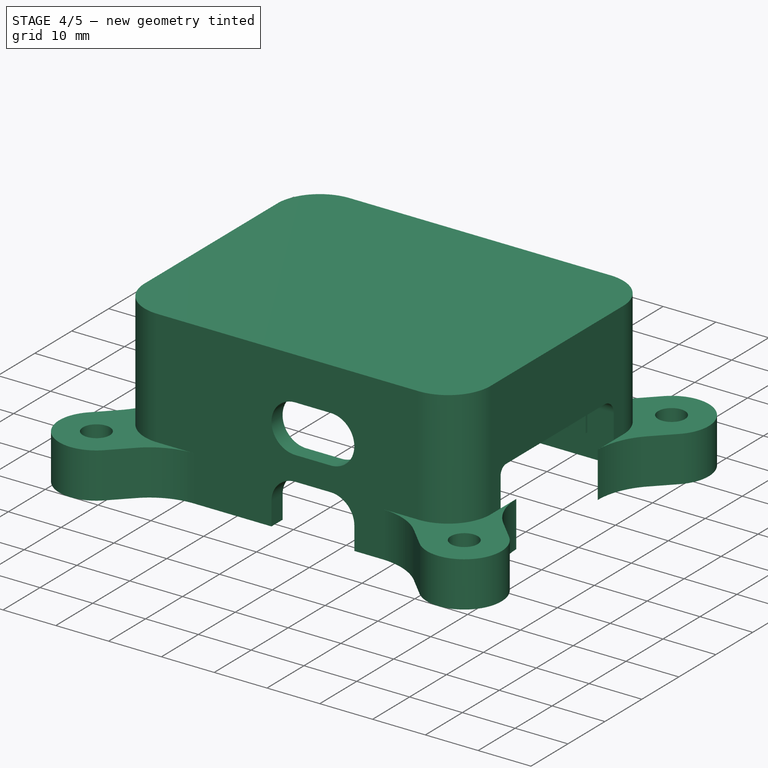
[diagram: stage 4 of 5 — iso view after this stage's code; geometry added in this stage tinted green]
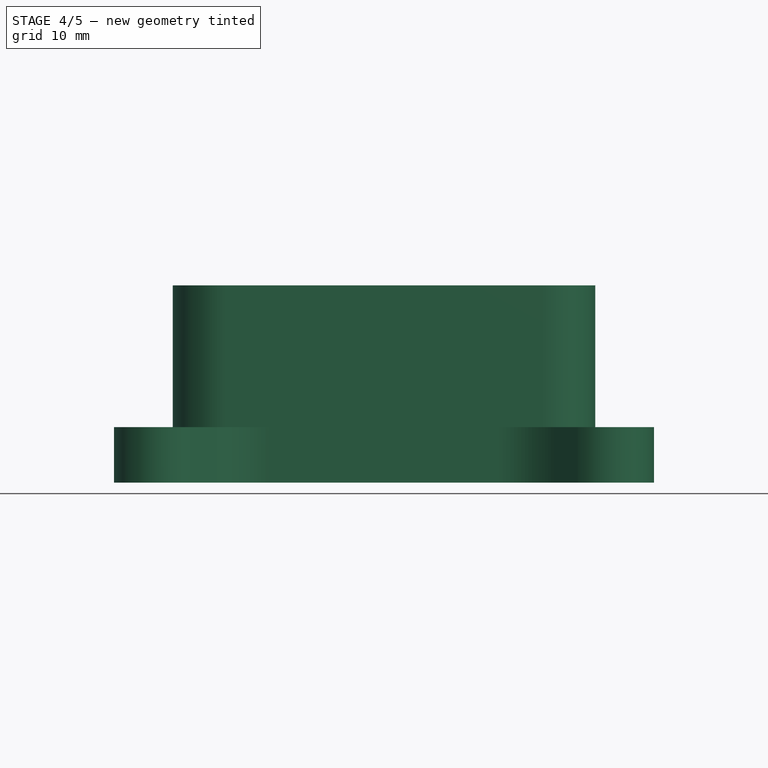
[diagram: stage 4 of 5 — front view after this stage's code; geometry added in this stage tinted green]
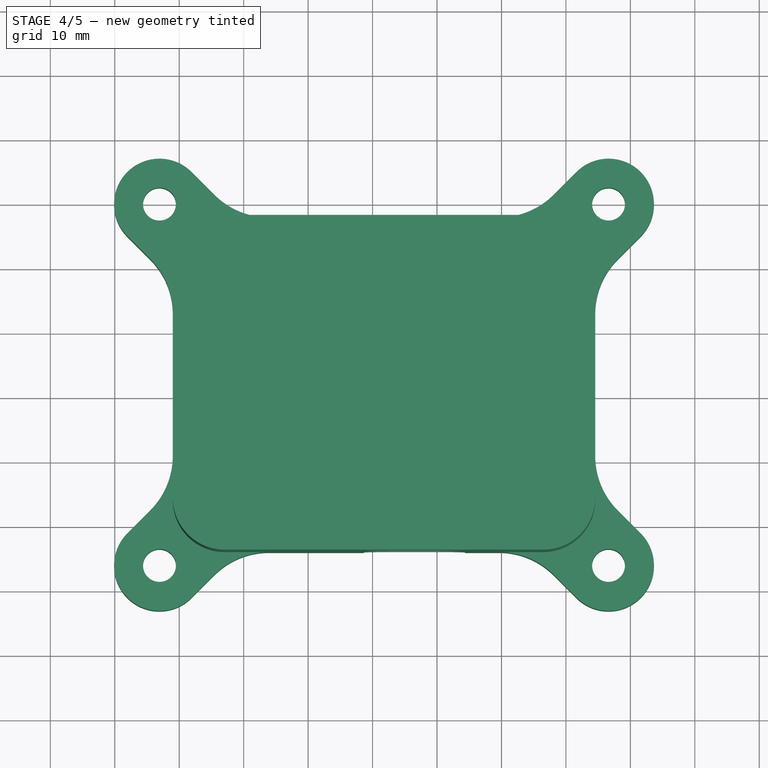
[diagram: stage 4 of 5 — top view after this stage's code; geometry added in this stage tinted green]
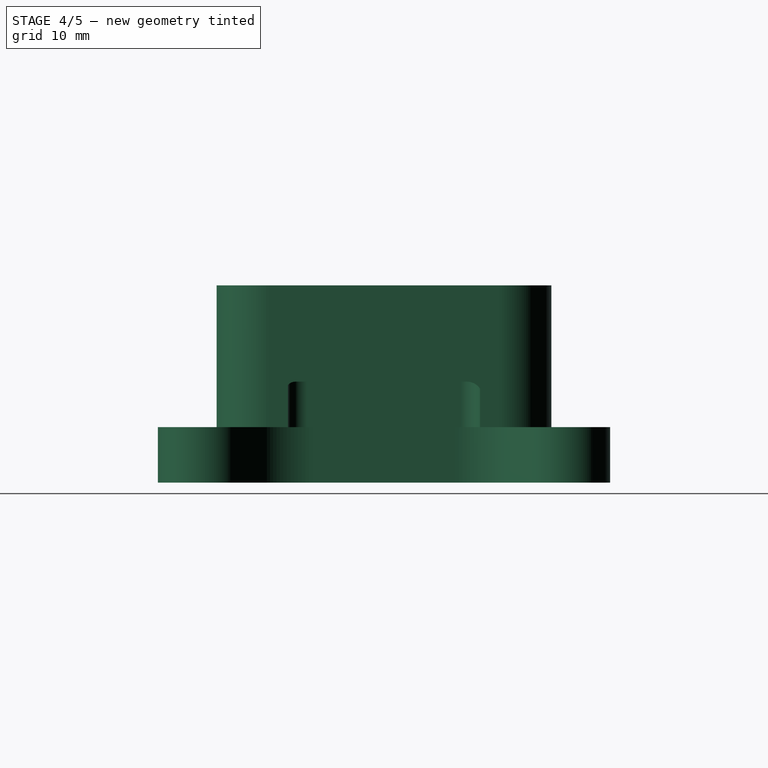
[diagram: stage 4 of 5 — right view after this stage's code; geometry added in this stage tinted green]
FEATURE [PartDesign::Body] Body002  label="Bottom"
  Group = -> [ShapeBinder,Sketch016,Pad015,Sketch017,Pad016]
  Origin = -> Origin002
  Tip = -> Pad016
FEATURE [PartDesign::ShapeBinder] ShapeBinder001  label="Separator.ShapeBinder"
  Placement = pos=(0,0,0) rot=(1,0,0;3.14159rad)
  Support = -> [Pad014]
  TraceSupport = false
FEATURE [Sketcher::SketchObject] Sketch018  label="LowerWalls"
  ExternalGeometry = -> [ShapeBinder001]
  FullyConstrained = true
  MapMode = 5
  Placement = pos=(0,1.7e-15,-7) rot=(0,0,1;0rad)
  Support = -> [ShapeBinder001]
  sketch-geometry (62):
    g0: LineSegment StartX=-4.54451 StartY=51.4567 StartZ=0 EndX=-8.08005 EndY=54.9923 EndZ=0
    g1: LineSegment StartX=3.94077 StartY=47.942 StartZ=0 EndX=39.6052 EndY=47.942 EndZ=0
    g2: LineSegment StartX=48.0905 StartY=51.4567 StartZ=0 EndX=51.626 EndY=54.9923 EndZ=0
    g3: LineSegment StartX=58.0607 StartY=41.4865 StartZ=0 EndX=61.5963 EndY=45.022 EndZ=0
    g4: LineSegment StartX=54.546 StartY=33.0012 StartZ=0 EndX=54.546 EndY=10.9408 EndZ=0
    g5: LineSegment StartX=58.0607 StartY=2.45549 StartZ=0 EndX=61.5963 EndY=-1.08005 EndZ=0
    g6: LineSegment StartX=51.626 StartY=-11.0503 StartZ=0 EndX=48.0905 EndY=-7.51472 EndZ=0
    g7: LineSegment StartX=39.6052 StartY=-4 StartZ=0 EndX=3.94077 EndY=-4 EndZ=0
    g8: LineSegment StartX=-4.54451 StartY=-7.51472 StartZ=0 EndX=-8.08005 EndY=-11.0503 EndZ=0
    g9: LineSegment StartX=-18.0503 StartY=-1.08005 StartZ=0 EndX=-14.5147 EndY=2.45549 EndZ=0
    g10: LineSegment StartX=-11 StartY=10.9408 StartZ=0 EndX=-11 EndY=33.0012 EndZ=0
    g11: LineSegment StartX=-14.5147 StartY=41.4865 StartZ=0 EndX=-18.0503 EndY=45.022 EndZ=0
    g12: ArcOfCircle CenterX=-13.0651 CenterY=50.0071 CenterZ=0 NormalX=0 NormalY=0 NormalZ=1 AngleXU=0 Radius=7.05 StartAngle=0.785398 EndAngle=3.92699
    g13: ArcOfCircle CenterX=56.6111 CenterY=50.0071 CenterZ=0 NormalX=0 NormalY=0 NormalZ=1 AngleXU=0 Radius=7.05 StartAngle=5.49779 EndAngle=8.63938
    g14: ArcOfCircle CenterX=39.6052 CenterY=59.942 CenterZ=0 NormalX=0 NormalY=0 NormalZ=1 AngleXU=0 Radius=12 StartAngle=4.71239 EndAngle=5.49779
    g15: ArcOfCircle CenterX=3.94077 CenterY=59.942 CenterZ=0 NormalX=0 NormalY=0 NormalZ=1 AngleXU=0 Radius=12 StartAngle=3.92699 EndAngle=4.71239
    g16: ArcOfCircle CenterX=-23 CenterY=33.0012 CenterZ=0 NormalX=0 NormalY=0 NormalZ=1 AngleXU=0 Radius=12 StartAngle=0 EndAngle=0.785398
    g17: ArcOfCircle CenterX=-23 CenterY=10.9408 CenterZ=0 NormalX=0 NormalY=0 NormalZ=1 AngleXU=0 Radius=12 StartAngle=5.49779 EndAngle=6.28319
    g18: ArcOfCircle CenterX=-13.0651 CenterY=-6.06515 CenterZ=0 NormalX=0 NormalY=0 NormalZ=1 AngleXU=0 Radius=7.05 StartAngle=2.35619 EndAngle=5.49779
    g19: ArcOfCircle CenterX=3.94077 CenterY=-16 CenterZ=0 NormalX=0 NormalY=0 NormalZ=1 AngleXU=0 Radius=12 StartAngle=1.5708 EndAngle=2.35619
    g20: ArcOfCircle CenterX=39.6052 CenterY=-16 CenterZ=0 NormalX=0 NormalY=0 NormalZ=1 AngleXU=0 Radius=12 StartAngle=0.785398 EndAngle=1.5708
    g21: ArcOfCircle CenterX=56.6111 CenterY=-6.06515 CenterZ=0 NormalX=0 NormalY=0 NormalZ=1 AngleXU=0 Radius=7.05 StartAngle=3.92699 EndAngle=7.06858
    g22: ArcOfCircle CenterX=66.546 CenterY=10.9408 CenterZ=0 NormalX=0 NormalY=0 NormalZ=1 AngleXU=0 Radius=12 StartAngle=3.14159 EndAngle=3.92699
    g23: ArcOfCircle CenterX=66.546 CenterY=33.0012 CenterZ=0 NormalX=0 NormalY=0 NormalZ=1 AngleXU=0 Radius=12 StartAngle=2.35619 EndAngle=3.14159
    g24: LineSegment StartX=66.546 StartY=33.0012 StartZ=0 EndX=54.546 EndY=33.0012 EndZ=0
    g25: LineSegment StartX=56.6111 StartY=50.0071 StartZ=0 EndX=51.626 EndY=54.9923 EndZ=0
    g26: LineSegment StartX=39.6052 StartY=59.942 StartZ=0 EndX=39.6052 EndY=47.942 EndZ=0
    g27: LineSegment StartX=3.94077 StartY=59.942 StartZ=0 EndX=3.94077 EndY=47.942 EndZ=0
    g28: LineSegment StartX=-13.0651 StartY=50.0071 StartZ=0 EndX=-8.08005 EndY=54.9923 EndZ=0
    g29: LineSegment StartX=-23 StartY=33.0012 StartZ=0 EndX=-11 EndY=33.0012 EndZ=0
    g30: LineSegment StartX=-23 StartY=10.9408 StartZ=0 EndX=-11 EndY=10.9408 EndZ=0
    g31: LineSegment StartX=-13.0651 StartY=-6.06515 StartZ=0 EndX=-18.0503 EndY=-1.08005 EndZ=0
    g32: LineSegment StartX=3.94077 StartY=-16 StartZ=0 EndX=3.94077 EndY=-4 EndZ=0
    g33: LineSegment StartX=39.6052 StartY=-16 StartZ=0 EndX=39.6052 EndY=-4 EndZ=0
    g34: LineSegment StartX=56.6111 StartY=-6.06515 StartZ=0 EndX=61.5963 EndY=-1.08005 EndZ=0
    g35: LineSegment StartX=66.546 StartY=10.9408 StartZ=0 EndX=54.546 EndY=10.9408 EndZ=0
    g36: Circle CenterX=-13.0651 CenterY=50.0071 CenterZ=0 NormalX=0 NormalY=0 NormalZ=1 AngleXU=0 Radius=2.55
    g37: Circle CenterX=56.6111 CenterY=50.0071 CenterZ=0 NormalX=0 NormalY=0 NormalZ=1 AngleXU=0 Radius=2.55
    g38: Circle CenterX=56.6111 CenterY=-6.06515 CenterZ=0 NormalX=0 NormalY=0 NormalZ=1 AngleXU=0 Radius=2.55
    g39: Circle CenterX=-13.0651 CenterY=-6.06515 CenterZ=0 NormalX=0 NormalY=0 NormalZ=1 AngleXU=0 Radius=2.55
    g40: GeomPoint X=54.808 Y=51.8103 Z=0
    g41: GeomPoint X=-14.8683 Y=-4.26203 Z=0
    g42: LineSegment StartX=-8 StartY=39.878 StartZ=0 EndX=-8 EndY=4.064 EndZ=0
    g43: LineSegment StartX=-2.936 StartY=-1 StartZ=0 EndX=46.482 EndY=-1 EndZ=0
    g44: LineSegment StartX=51.546 StartY=39.878 StartZ=0 EndX=51.546 EndY=4.064 EndZ=0
    g45: LineSegment StartX=46.482 StartY=44.942 StartZ=0 EndX=-2.936 EndY=44.942 EndZ=0
    g46: LineSegment StartX=-11 StartY=33.0012 StartZ=0 EndX=-8 EndY=33.0012 EndZ=0
    g47: LineSegment StartX=3.94077 StartY=47.942 StartZ=0 EndX=3.94077 EndY=44.942 EndZ=0
    g48: LineSegment StartX=54.546 StartY=10.9408 StartZ=0 EndX=51.546 EndY=10.9408 EndZ=0
    g49: LineSegment StartX=39.6052 StartY=-4 StartZ=0 EndX=39.6052 EndY=-1 EndZ=0
    g50: ArcOfCircle CenterX=-2.936 CenterY=39.878 CenterZ=0 NormalX=0 NormalY=0 NormalZ=1 AngleXU=0 Radius=5.064 StartAngle=1.5708 EndAngle=3.14159
    g51: ArcOfCircle CenterX=46.482 CenterY=39.878 CenterZ=0 NormalX=0 NormalY=0 NormalZ=1 AngleXU=0 Radius=5.064 StartAngle=6.203e-13 EndAngle=1.5708
    g52: ArcOfCircle CenterX=46.482 CenterY=4.064 CenterZ=0 NormalX=0 NormalY=0 NormalZ=1 AngleXU=0 Radius=5.064 StartAngle=4.71239 EndAngle=6.28319
    g53: ArcOfCircle CenterX=-2.936 CenterY=4.064 CenterZ=0 NormalX=0 NormalY=0 NormalZ=1 AngleXU=0 Radius=5.064 StartAngle=3.14159 EndAngle=4.71239
    g54: LineSegment StartX=-2.936 StartY=4.064 StartZ=0 EndX=-2.936 EndY=-1 EndZ=0
    g55: LineSegment StartX=-8 StartY=4.064 StartZ=0 EndX=-2.936 EndY=4.064 EndZ=0
    g56: LineSegment StartX=-8 StartY=39.878 StartZ=0 EndX=-2.936 EndY=39.878 EndZ=0
    g57: LineSegment StartX=-2.936 StartY=39.878 StartZ=0 EndX=-2.936 EndY=44.942 EndZ=0
    g58: LineSegment StartX=46.482 StartY=44.942 StartZ=0 EndX=46.482 EndY=39.878 EndZ=0
    g59: LineSegment StartX=46.482 StartY=39.878 StartZ=0 EndX=51.546 EndY=39.878 EndZ=0
    g60: LineSegment StartX=51.546 StartY=4.064 StartZ=0 EndX=46.482 EndY=4.064 EndZ=0
    g61: LineSegment StartX=46.482 StartY=4.064 StartZ=0 EndX=46.482 EndY=-1 EndZ=0
  constraints (151):
    c: Coincident(g0,g-8)
    c: Coincident(g0,g-8)
    c: Coincident(g1,g-16)
    c: Coincident(g1,g-16)
    c: Coincident(g2,g-9)
    c: Coincident(g2,g-9)
    c: Coincident(g3,g-10)
    c: Coincident(g3,g-10)
    c: Coincident(g4,g-14)
    c: Coincident(g4,g-14)
    c: Coincident(g5,g-11)
    c: Coincident(g5,g-11)
    c: Coincident(g6,g-12)
    c: Coincident(g6,g-12)
    c: Coincident(g7,g-3)
    c: Coincident(g7,g-3)
    c: Coincident(g8,g-4)
    c: Coincident(g8,g-4)
    c: Coincident(g9,g-5)
    c: Coincident(g9,g-5)
    c: Coincident(g10,g-18)
    c: Coincident(g10,g-18)
    c: Coincident(g11,g-6)
    c: Coincident(g11,g-6)
    c: Coincident(g12,g11)
    c: Coincident(g12,g0)
    c: Coincident(g13,g2)
    c: Coincident(g13,g3)
    c: Coincident(g14,g1)
    c: Coincident(g14,g2)
    c: Coincident(g15,g0)
    c: Coincident(g15,g1)
    c: Coincident(g16,g11)
    c: Coincident(g16,g10)
    c: Coincident(g17,g10)
    c: Coincident(g17,g9)
    c: Coincident(g18,g9)
    c: Coincident(g18,g8)
    c: Coincident(g19,g8)
    c: Coincident(g19,g7)
    c: Coincident(g20,g7)
    c: Coincident(g20,g6)
    c: Coincident(g21,g6)
    c: Coincident(g21,g5)
    c: Coincident(g22,g4)
    c: Coincident(g22,g5)
    c: Coincident(g23,g3)
    c: Coincident(g23,g4)
    c: Coincident(g24,g23)
    c: Coincident(g24,g4)
    c: Coincident(g25,g13)
    c: Coincident(g25,g2)
    c: Coincident(g26,g14)
    c: Coincident(g26,g1)
    c: Coincident(g27,g15)
    c: Coincident(g27,g1)
    c: Coincident(g28,g12)
    c: Coincident(g28,g0)
    c: Coincident(g29,g16)
    c: Coincident(g29,g10)
    c: Coincident(g30,g17)
    c: Coincident(g30,g10)
    c: Coincident(g31,g18)
    c: Coincident(g31,g9)
    c: Coincident(g32,g19)
    c: Coincident(g32,g7)
    c: Coincident(g33,g20)
    c: Coincident(g33,g7)
    c: Coincident(g34,g21)
    c: Coincident(g34,g5)
    c: Coincident(g35,g22)
    c: Coincident(g35,g4)
    c: Perpendicular(g4,g24)
    c: Perpendicular(g4,g35)
    c: Perpendicular(g7,g33)
    c: Perpendicular(g7,g32)
    c: Perpendicular(g10,g30)
    c: Perpendicular(g10,g29)
    c: Perpendicular(g1,g27)
    c: Perpendicular(g1,g26)
    c: Coincident(g36,g12)
    c: Tangent(g36,g-17)
    c: Coincident(g37,g13)
    c: Coincident(g38,g21)
    c: Tangent(g38,g-13)
    c: Coincident(g39,g18)
    c: Perpendicular(g9,g31)
    c: Perpendicular(g5,g34)
    c: Perpendicular(g2,g25)
    c: Perpendicular(g0,g28)
    c: PointOnObject(g40,g-15)
    c: PointOnObject(g40,g37)
    c: PointOnObject(g40,g25)
    c: PointOnObject(g41,g-19)
    c: PointOnObject(g41,g31)
    c: PointOnObject(g41,g39)
    c: Parallel(g10,g42)
    c: Parallel(g44,g4)
    c: Parallel(g1,g45)
    c: Parallel(g43,g7)
    c: Coincident(g46,g10)
    c: PointOnObject(g46,g42)
    c: Coincident(g47,g1)
    c: PointOnObject(g47,g45)
    c: Coincident(g48,g4)
    c: PointOnObject(g48,g44)
    c: Coincident(g49,g7)
    c: PointOnObject(g49,g43)
    c: Perpendicular(g44,g48)
    c: Perpendicular(g43,g49)
    c: Perpendicular(g42,g46)
    c: Perpendicular(g45,g47)
    c: Equal(g45,g43)
    c: Equal(g44,g42)
    c: Equal(g46,g47)
    c: Equal(g48,g49)
    c: Coincident(g50,g42)
    c: Coincident(g50,g45)
    c: Coincident(g51,g45)
    c: Coincident(g51,g44)
    c: Coincident(g52,g44)
    c: Coincident(g52,g43)
    c: Coincident(g53,g43)
    c: Coincident(g53,g42)
    c: Coincident(g54,g53)
    c: Coincident(g54,g43)
    c: Coincident(g55,g42)
    c: Coincident(g55,g53)
    c: Coincident(g42,g56)
    c: Coincident(g56,g50)
    c: Coincident(g56,g57)
    c: Coincident(g57,g45)
    c: Coincident(g45,g58)
    c: Coincident(g58,g51)
    c: Coincident(g58,g59)
    c: Coincident(g59,g44)
    c: Coincident(g44,g60)
    c: Coincident(g60,g52)
    c: Coincident(g60,g61)
    c: Coincident(g61,g43)
    c: Perpendicular(g43,g61)
    c: Perpendicular(g43,g54)
    c: Perpendicular(g42,g55)
    c: Perpendicular(g44,g60)
    c: Perpendicular(g44,g59)
    c: Perpendicular(g45,g58)
    c: Perpendicular(g45,g57)
    c: Perpendicular(g42,g56)
    c: Equal(g57,g58)
    c: Distance(g46) = 3
    c: Coincident(g-20,g51)
FEATURE [PartDesign::Pad] Pad017  label="LowerWalls.Pad"
  Direction = (0,-4e-16,1)
  Length = 8.6
  Length2 = 10
  Placement = pos=(0,0,0) rot=(1,0,0;3.14159rad)
  Profile = -> Sketch018
  ReferenceAxis = -> Sketch018 [N_Axis]
  Type = 0
  expr: Length = <<MountingFeet.Pad>>.Length + <<MainPCB.Pad>>.Length
FEATURE [PartDesign::ShapeBinder] ShapeBinder002  label="PCB.ShapeBinder"
  Support = -> [Pad011]
  TraceSupport = false
FEATURE [Sketcher::SketchObject] Sketch019  label="UpperWalls"
  ExternalGeometry = -> [Pad017,ShapeBinder002]
  FullyConstrained = true
  MapMode = 5
  Placement = pos=(0,-6e-16,1.6) rot=(0,0,1;0rad)
  Support = -> [Pad017]
  sketch-geometry (50):
    g0: ArcOfCircle CenterX=46.482 CenterY=4.064 CenterZ=0 NormalX=0 NormalY=0 NormalZ=1 AngleXU=0 Radius=3 StartAngle=1.5708 EndAngle=3.14159
    g1: LineSegment StartX=51.546 StartY=7.064 StartZ=0 EndX=51.546 EndY=36.878 EndZ=0
    g2: LineSegment StartX=43.482 StartY=44.942 StartZ=0 EndX=7.064 EndY=44.942 EndZ=0
    g3: LineSegment StartX=-8 StartY=33.878 StartZ=0 EndX=-8 EndY=10.064 EndZ=0
    g4: LineSegment StartX=7.064 StartY=-1 StartZ=0 EndX=43.482 EndY=-1 EndZ=0
    g5: LineSegment StartX=43.482 StartY=4.064 StartZ=0 EndX=43.482 EndY=-1 EndZ=0
    g6: LineSegment StartX=46.482 StartY=7.064 StartZ=0 EndX=51.546 EndY=7.064 EndZ=0
    g7: ArcOfCircle CenterX=46.482 CenterY=39.878 CenterZ=0 NormalX=0 NormalY=0 NormalZ=1 AngleXU=0 Radius=3 StartAngle=3.14159 EndAngle=4.71239
    g8: ArcOfCircle CenterX=4.064 CenterY=39.878 CenterZ=0 NormalX=0 NormalY=0 NormalZ=1 AngleXU=0 Radius=3 StartAngle=4.71239 EndAngle=6.28319
    g9: ArcOfCircle CenterX=4.064 CenterY=4.064 CenterZ=0 NormalX=0 NormalY=0 NormalZ=1 AngleXU=0 Radius=3 StartAngle=0 EndAngle=1.5708
    g10: LineSegment StartX=7.064 StartY=4.064 StartZ=0 EndX=7.064 EndY=-1 EndZ=0
    g11: LineSegment StartX=7.064 StartY=39.878 StartZ=0 EndX=7.064 EndY=44.942 EndZ=0
    g12: LineSegment StartX=43.482 StartY=39.878 StartZ=0 EndX=43.482 EndY=44.942 EndZ=0
    g13: LineSegment StartX=46.482 StartY=36.878 StartZ=0 EndX=51.546 EndY=36.878 EndZ=0
    g14: LineSegment StartX=46.482 StartY=4.064 StartZ=0 EndX=46.482 EndY=7.064 EndZ=0
    g15: LineSegment StartX=46.482 StartY=4.064 StartZ=0 EndX=43.482 EndY=4.064 EndZ=0
    g16: LineSegment StartX=4.064 StartY=4.064 StartZ=0 EndX=7.064 EndY=4.064 EndZ=0
    g17: LineSegment StartX=4.064 StartY=4.064 StartZ=0 EndX=4.064 EndY=7.064 EndZ=0
    g18: LineSegment StartX=46.482 StartY=39.878 StartZ=0 EndX=46.482 EndY=36.878 EndZ=0
    g19: LineSegment StartX=46.482 StartY=39.878 StartZ=0 EndX=43.482 EndY=39.878 EndZ=0
    g20: LineSegment StartX=4.064 StartY=39.878 StartZ=0 EndX=7.064 EndY=39.878 EndZ=0
    g21: LineSegment StartX=4.064 StartY=36.878 StartZ=0 EndX=4.064 EndY=39.878 EndZ=0
    g22: LineSegment StartX=4.064 StartY=7.064 StartZ=0 EndX=-5 EndY=7.064 EndZ=0
    g23: LineSegment StartX=4.064 StartY=36.878 StartZ=0 EndX=-5 EndY=36.878 EndZ=0
    g24: ArcOfCircle CenterX=-5 CenterY=10.064 CenterZ=0 NormalX=0 NormalY=0 NormalZ=1 AngleXU=0 Radius=3 StartAngle=3.14159 EndAngle=4.71239
    g25: ArcOfCircle CenterX=-5 CenterY=33.878 CenterZ=0 NormalX=0 NormalY=0 NormalZ=1 AngleXU=0 Radius=3 StartAngle=1.5708 EndAngle=3.14159
    g26: LineSegment StartX=-5 StartY=33.878 StartZ=0 EndX=-8 EndY=33.878 EndZ=0
    g27: LineSegment StartX=-5 StartY=33.878 StartZ=0 EndX=-5 EndY=36.878 EndZ=0
    g28: LineSegment StartX=-5 StartY=10.064 StartZ=0 EndX=-5 EndY=7.064 EndZ=0
    g29: LineSegment StartX=-8 StartY=10.064 StartZ=0 EndX=-5 EndY=10.064 EndZ=0
    g30: LineSegment StartX=-2.936 StartY=47.942 StartZ=0 EndX=46.482 EndY=47.942 EndZ=0
    g31: ArcOfCircle CenterX=46.482 CenterY=39.878 CenterZ=0 NormalX=0 NormalY=0 NormalZ=1 AngleXU=0 Radius=8.064 StartAngle=6.28318 EndAngle=7.85398
    g32: LineSegment StartX=54.546 StartY=39.878 StartZ=0 EndX=54.546 EndY=4.064 EndZ=0
    g33: LineSegment StartX=46.482 StartY=-4 StartZ=0 EndX=-2.936 EndY=-4 EndZ=0
    g34: LineSegment StartX=-11 StartY=4.06397 StartZ=0 EndX=-11 EndY=39.878 EndZ=0
    g35: ArcOfCircle CenterX=-2.936 CenterY=39.878 CenterZ=0 NormalX=0 NormalY=0 NormalZ=1 AngleXU=0 Radius=8.064 StartAngle=1.5708 EndAngle=3.14159
    g36: ArcOfCircle CenterX=46.482 CenterY=4.064 CenterZ=0 NormalX=0 NormalY=0 NormalZ=1 AngleXU=0 Radius=8.064 StartAngle=4.71239 EndAngle=6.28318
    g37: ArcOfCircle CenterX=-2.936 CenterY=4.064 CenterZ=0 NormalX=0 NormalY=0 NormalZ=1 AngleXU=0 Radius=8.064 StartAngle=3.1416 EndAngle=4.71239
    g38: LineSegment StartX=-2.936 StartY=39.878 StartZ=0 EndX=-2.936 EndY=47.942 EndZ=0
    g39: LineSegment StartX=46.482 StartY=39.878 StartZ=0 EndX=46.482 EndY=47.942 EndZ=0
    g40: LineSegment StartX=46.482 StartY=4.064 StartZ=0 EndX=46.482 EndY=-4 EndZ=0
    g41: LineSegment StartX=-2.936 StartY=4.064 StartZ=0 EndX=-2.936 EndY=-4 EndZ=0
    g42: GeomPoint X=46.482 Y=5.842 Z=0
    g43: Circle CenterX=46.482 CenterY=4.064 CenterZ=0 NormalX=0 NormalY=0 NormalZ=1 AngleXU=0 Radius=1.778
    g44: Circle CenterX=4.064 CenterY=4.064 CenterZ=0 NormalX=0 NormalY=0 NormalZ=1 AngleXU=0 Radius=1.778
    g45: Circle CenterX=4.064 CenterY=39.878 CenterZ=0 NormalX=0 NormalY=0 NormalZ=1 AngleXU=0 Radius=1.778
    g46: Circle CenterX=46.482 CenterY=39.878 CenterZ=0 NormalX=0 NormalY=0 NormalZ=1 AngleXU=0 Radius=1.778
    g47: GeomPoint X=46.482 Y=41.656 Z=0
    g48: GeomPoint X=4.064 Y=38.1 Z=0
    g49: GeomPoint X=4.064 Y=5.842 Z=0
  constraints (128):
    c: Coincident(g0,g-11)
    c: PointOnObject(g1,g-9)
    c: PointOnObject(g1,g-9)
    c: PointOnObject(g2,g-8)
    c: PointOnObject(g2,g-8)
    c: PointOnObject(g3,g-7)
    c: PointOnObject(g3,g-7)
    c: PointOnObject(g4,g-10)
    c: PointOnObject(g4,g-10)
    c: Coincident(g5,g0)
    c: Coincident(g5,g4)
    c: Coincident(g6,g0)
    c: Coincident(g6,g1)
    c: Coincident(g7,g-14)
    c: Coincident(g8,g-13)
    c: Coincident(g9,g-12)
    c: Coincident(g10,g9)
    c: Coincident(g10,g4)
    c: Coincident(g11,g8)
    c: Coincident(g11,g2)
    c: Coincident(g12,g7)
    c: Coincident(g12,g2)
    c: Coincident(g13,g7)
    c: Coincident(g13,g1)
    c: Perpendicular(g2,g11)
    c: Perpendicular(g1,g13)
    c: Perpendicular(g2,g12)
    c: Perpendicular(g1,g6)
    c: Perpendicular(g4,g5)
    c: Perpendicular(g4,g10)
    c: Equal(g8,g7)
    c: Equal(g7,g0)
    c: Equal(g0,g9)
    c: Coincident(g14,g0)
    c: Coincident(g14,g0)
    c: Coincident(g15,g0)
    c: Coincident(g15,g0)
    c: Coincident(g16,g9)
    c: Coincident(g16,g9)
    c: Coincident(g17,g9)
    c: Coincident(g17,g9)
    c: Coincident(g18,g7)
    c: Coincident(g18,g7)
    c: Coincident(g19,g7)
    c: Coincident(g19,g7)
    c: Coincident(g20,g8)
    c: Coincident(g20,g8)
    c: Coincident(g21,g8)
    c: Coincident(g21,g8)
    c: Perpendicular(g12,g19)
    c: Perpendicular(g13,g18)
    c: Perpendicular(g6,g14)
    c: Perpendicular(g15,g5)
    c: Perpendicular(g10,g16)
    c: Perpendicular(g11,g20)
    c: Perpendicular(g20,g21)
    c: Perpendicular(g16,g17)
    c: Coincident(g22,g9)
    c: Coincident(g23,g8)
    c: Perpendicular(g23,g3)
    c: Perpendicular(g3,g22)
    c: Coincident(g24,g3)
    c: Coincident(g24,g22)
    c: Coincident(g25,g23)
    c: Coincident(g25,g3)
    c: Coincident(g26,g25)
    c: Coincident(g26,g3)
    c: Coincident(g27,g25)
    c: Coincident(g27,g23)
    c: Coincident(g28,g24)
    c: Coincident(g28,g22)
    c: Coincident(g29,g3)
    c: Coincident(g29,g24)
    c: Perpendicular(g22,g28)
    c: Perpendicular(g3,g29)
    c: Perpendicular(g23,g27)
    c: Perpendicular(g3,g26)
    c: Equal(g24,g25)
    c: PointOnObject(g30,g-5)
    c: PointOnObject(g30,g-5)
    c: Coincident(g31,g7)
    c: Coincident(g31,g30)
    c: PointOnObject(g32,g-4)
    c: PointOnObject(g32,g-4)
    c: PointOnObject(g33,g-3)
    c: PointOnObject(g33,g-3)
    c: PointOnObject(g34,g-6)
    c: PointOnObject(g34,g-6)
    c: Coincident(g32,g31)
    c: Coincident(g35,g-15)
    c: Coincident(g35,g34)
    c: Coincident(g35,g30)
    c: Coincident(g36,g0)
    c: Coincident(g36,g33)
    c: Coincident(g36,g32)
    c: Coincident(g37,g-16)
    c: Coincident(g37,g33)
    c: Coincident(g37,g34)
    c: Coincident(g38,g35)
    c: Coincident(g38,g30)
    c: Coincident(g39,g7)
    c: Coincident(g39,g30)
    c: Coincident(g40,g0)
    c: Coincident(g40,g33)
    c: Coincident(g41,g37)
    c: Coincident(g41,g33)
    c: Perpendicular(g33,g41)
    c: Perpendicular(g30,g38)
    c: Perpendicular(g30,g39)
    c: Perpendicular(g33,g40)
    c: Distance(g14) = 3
    c: PointOnObject(g42,g-11)
    c: Coincident(g43,g0)
    c: PointOnObject(g42,g43)
    c: PointOnObject(g42,g14)
    c: Coincident(g44,g9)
    c: Coincident(g45,g8)
    c: Coincident(g46,g7)
    c: PointOnObject(g47,g-14)
    c: PointOnObject(g48,g-13)
    c: PointOnObject(g49,g-12)
    c: PointOnObject(g49,g17)
    c: PointOnObject(g49,g44)
    c: PointOnObject(g48,g21)
    c: PointOnObject(g48,g45)
    c: PointOnObject(g47,g18)
    c: PointOnObject(g47,g46)
    c: Equal(g25,g8)
FEATURE [PartDesign::Pad] Pad018  label="UpperWalls.Pad"
  BaseFeature = -> Pad017
  Direction = (0,-5e-16,1)
  Length = 18
  Length2 = 10
  Placement = pos=(0,0,0) rot=(1,0,0;3.14159rad)
  Profile = -> Sketch019
  ReferenceAxis = -> Sketch019 [N_Axis]
  Type = 0
FEATURE [Sketcher::SketchObject] Sketch020  label="TopCover"
  ExternalGeometry = -> [Pad018]
  FullyConstrained = true
  MapMode = 5
  Placement = pos=(0,-9.6e-15,19.6) rot=(0,0,1;0rad)
  Support = -> [Pad018]
  sketch-geometry (12):
    g0: LineSegment StartX=-2.936 StartY=47.942 StartZ=0 EndX=46.482 EndY=47.942 EndZ=0
    g1: LineSegment StartX=54.546 StartY=39.878 StartZ=0 EndX=54.546 EndY=4.064 EndZ=0
    g2: LineSegment StartX=46.482 StartY=-4 StartZ=0 EndX=-2.936 EndY=-4 EndZ=0
    g3: LineSegment StartX=-11 StartY=4.06397 StartZ=0 EndX=-11 EndY=39.878 EndZ=0
    g4: ArcOfCircle CenterX=-2.93603 CenterY=39.878 CenterZ=0 NormalX=0 NormalY=0 NormalZ=1 AngleXU=0 Radius=8.06397 StartAngle=1.57079 EndAngle=3.14159
    g5: ArcOfCircle CenterX=46.482 CenterY=39.878 CenterZ=0 NormalX=0 NormalY=0 NormalZ=1 AngleXU=0 Radius=8.06401 StartAngle=0 EndAngle=1.5708
    g6: ArcOfCircle CenterX=46.482 CenterY=4.064 CenterZ=0 NormalX=0 NormalY=0 NormalZ=1 AngleXU=0 Radius=8.064 StartAngle=4.71239 EndAngle=6.28319
    g7: ArcOfCircle CenterX=-2.93603 CenterY=4.06397 CenterZ=0 NormalX=0 NormalY=0 NormalZ=1 AngleXU=0 Radius=8.06397 StartAngle=3.14159 EndAngle=4.71239
    g8: LineSegment StartX=-2.93603 StartY=4.06397 StartZ=0 EndX=-11 EndY=4.06397 EndZ=0
    g9: LineSegment StartX=-2.93603 StartY=39.878 StartZ=0 EndX=-11 EndY=39.878 EndZ=0
    g10: LineSegment StartX=46.482 StartY=39.878 StartZ=0 EndX=54.546 EndY=39.878 EndZ=0
    g11: LineSegment StartX=46.482 StartY=4.064 StartZ=0 EndX=54.546 EndY=4.064 EndZ=0
  constraints (28):
    c: Coincident(g0,g-3)
    c: Coincident(g0,g-3)
    c: Coincident(g1,g-5)
    c: Coincident(g1,g-5)
    c: Coincident(g2,g-6)
    c: Coincident(g2,g-6)
    c: Coincident(g3,g-4)
    c: Coincident(g3,g-4)
    c: Coincident(g4,g3)
    c: Coincident(g4,g0)
    c: Coincident(g5,g0)
    c: Coincident(g5,g1)
    c: Coincident(g6,g1)
    c: Coincident(g6,g2)
    c: Coincident(g7,g3)
    c: Coincident(g7,g2)
    c: Coincident(g8,g7)
    c: Coincident(g8,g3)
    c: Coincident(g9,g4)
    c: Coincident(g9,g3)
    c: Coincident(g10,g5)
    c: Coincident(g10,g1)
    c: Coincident(g11,g6)
    c: Coincident(g11,g1)
    c: Perpendicular(g1,g10)
    c: Perpendicular(g1,g11)
    c: Perpendicular(g3,g8)
    c: Perpendicular(g3,g9)
FEATURE [PartDesign::Pad] Pad019  label="TopCover.Pad"
  BaseFeature = -> Pad018
  Direction = (0,-6e-16,1)
  Length = 4
  Length2 = 10
  Placement = pos=(0,0,0) rot=(1,0,0;3.14159rad)
  Profile = -> Sketch020
  ReferenceAxis = -> Sketch020 [N_Axis]
  Type = 0
FEATURE [PartDesign::ShapeBinder] ShapeBinder003  label="D1Top.ShapeBinder"
  Placement = pos=(0,0,4.48) rot=(0,0,1;0rad)
  Support = -> [Pad011]
  TraceSupport = false
FEATURE [Sketcher::SketchObject] Sketch021  label="D1LED"
  ExternalGeometry = -> [ShapeBinder003]
  FullyConstrained = true
  MapMode = 5
  Placement = pos=(0,-1.46e-14,23.6) rot=(0,0,1;0rad)
  Support = -> [Pad019]
  sketch-geometry (4):
    g0: GeomPoint X=32.846 Y=27.95 Z=0
    g1: LineSegment StartX=32.846 StartY=27.95 StartZ=0 EndX=32.846 EndY=34.25 EndZ=0
    g2: LineSegment StartX=32.846 StartY=27.95 StartZ=0 EndX=39.446 EndY=27.95 EndZ=0
    g3: Circle CenterX=32.846 CenterY=27.95 CenterZ=0 NormalX=0 NormalY=0 NormalZ=1 AngleXU=0 Radius=0.75
  constraints (10):
    c: Coincident(g1,g0)
    c: PointOnObject(g1,g-3)
    c: Coincident(g2,g0)
    c: PointOnObject(g2,g-4)
    c: Perpendicular(g-3,g1)
    c: Perpendicular(g-4,g2)
    c: Distance(g1) = 6.3
    c: Distance(g2) = 6.6
    c: Coincident(g3,g0)
    c: Diameter(g3) = 1.5
FEATURE [PartDesign::ShapeBinder] ShapeBinder004
  Support = -> [Pad011]
  TraceSupport = false
FEATURE [Sketcher::SketchObject] Sketch022
  ExternalGeometry = -> [ShapeBinder004]
  FullyConstrained = true
  MapMode = 5
  Placement = pos=(0,-4,-3e-15) rot=(0,0.707107,-0.707107;3.14159rad)
  sketch-geometry (13):
    g0: LineSegment StartX=-23.146 StartY=-1.85 StartZ=0 EndX=-29.837 EndY=-1.85 EndZ=0
    g1: ArcOfCircle CenterX=-23.146 CenterY=2.65 CenterZ=0 NormalX=0 NormalY=0 NormalZ=1 AngleXU=0 Radius=4.5 StartAngle=4.71239 EndAngle=6.28319
    g2: ArcOfCircle CenterX=-29.837 CenterY=2.65 CenterZ=0 NormalX=0 NormalY=0 NormalZ=1 AngleXU=0 Radius=4.5 StartAngle=3.14159 EndAngle=4.71239
    g3: LineSegment StartX=-29.837 StartY=-1.85 StartZ=0 EndX=-29.837 EndY=2.65 EndZ=0
    g4: LineSegment StartX=-23.146 StartY=2.65 StartZ=0 EndX=-23.146 EndY=-1.85 EndZ=0
    g5: LineSegment StartX=-26.837 StartY=1.1 StartZ=0 EndX=-26.837 EndY=-1.85 EndZ=0
    g6: LineSegment StartX=-26.837 StartY=-1.85 StartZ=0 EndX=-29.837 EndY=1.1 EndZ=0
    g7: LineSegment StartX=-26.837 StartY=-1.85 StartZ=0 EndX=-23.837 EndY=1.1 EndZ=0
    g8: LineSegment StartX=-34.337 StartY=2.65 StartZ=0 EndX=-34.337 EndY=8.65 EndZ=0
    g9: LineSegment StartX=-18.646 StartY=2.65 StartZ=0 EndX=-18.646 EndY=8.65 EndZ=0
    g10: LineSegment StartX=-29.837 StartY=2.65 StartZ=0 EndX=-34.337 EndY=2.65 EndZ=0
    g11: LineSegment StartX=-23.146 StartY=2.65 StartZ=0 EndX=-18.646 EndY=2.65 EndZ=0
    g12: LineSegment StartX=-34.337 StartY=8.65 StartZ=0 EndX=-18.646 EndY=8.65 EndZ=0
  constraints (35):
    c: Coincident(g1,g0)
    c: Coincident(g2,g0)
    c: Parallel(g0,g-4)
    c: Coincident(g3,g0)
    c: Coincident(g3,g2)
    c: Coincident(g4,g1)
    c: Coincident(g4,g0)
    c: Perpendicular(g0,g4)
    c: Perpendicular(g0,g3)
    c: PointOnObject(g5,g-4)
    c: PointOnObject(g5,g0)
    c: Perpendicular(g0,g5)
    c: Coincident(g6,g5)
    c: Coincident(g6,g-8)
    c: Coincident(g7,g5)
    c: Coincident(g7,g-5)
    c: Equal(g7,g6)
    c: Distance(g3) = 4.5  'ChargingUSBHoleRadius'
    c: PointOnObject(g-12,g4)
    c: Equal(g1,g2)
    c: Symmetric(g-8,g-7,g2)
    c: Coincident(g8,g2)
    c: Coincident(g9,g1)
    c: Perpendicular(g8,g0)
    c: Perpendicular(g0,g9)
    c: Equal(g9,g8)
    c: Coincident(g10,g2)
    c: Coincident(g10,g2)
    c: Coincident(g11,g1)
    c: Coincident(g11,g1)
    c: Perpendicular(g8,g10)
    c: Perpendicular(g9,g11)
    c: Coincident(g12,g8)
    c: Coincident(g12,g9)
    c: Distance(g8) = 6
FEATURE [PartDesign::Pocket] Pocket002
  BaseFeature = -> Pad019
  Direction = (0,1,7e-16)
  Length = 5
  Length2 = 5
  Placement = pos=(0,0,0) rot=(1,0,0;3.14159rad)
  Profile = -> Sketch022
  ReferenceAxis = -> Sketch022 [N_Axis]
  Type = 0
FEATURE [Sketcher::SketchObject] Sketch023
  ExternalGeometry = -> [ShapeBinder004,Pocket002]
  FullyConstrained = true
  MapMode = 5
  Placement = pos=(-2e-16,-4,-2.4e-15) rot=(0,0.707107,-0.707107;3.14159rad)
  Support = -> [Pocket002]
  sketch-geometry (6):
    g0: LineSegment StartX=-29.837 StartY=-1.85 StartZ=0 EndX=-29.837 EndY=-15.43 EndZ=0
    g1: LineSegment StartX=-23.146 StartY=-1.85 StartZ=0 EndX=-23.146 EndY=-15.43 EndZ=0
    g2: LineSegment StartX=-29.837 StartY=-15.43 StartZ=0 EndX=-23.146 EndY=-15.43 EndZ=0
    g3: LineSegment StartX=-29.837 StartY=-6.43 StartZ=0 EndX=-23.146 EndY=-6.43 EndZ=0
    g4: ArcOfCircle CenterX=-29.837 CenterY=-10.93 CenterZ=0 NormalX=0 NormalY=0 NormalZ=1 AngleXU=0 Radius=4.5 StartAngle=1.5708 EndAngle=4.71239
    g5: ArcOfCircle CenterX=-23.146 CenterY=-10.93 CenterZ=0 NormalX=0 NormalY=0 NormalZ=1 AngleXU=0 Radius=4.5 StartAngle=4.71239 EndAngle=7.85398
  constraints (17):
    c: Coincident(g0,g-5)
    c: Coincident(g1,g-5)
    c: Parallel(g0,g1)
    c: Perpendicular(g0,g-3)
    c: Coincident(g2,g0)
    c: Coincident(g2,g1)
    c: PointOnObject(g3,g0)
    c: PointOnObject(g3,g1)
    c: PointOnObject(g4,g0)
    c: Coincident(g4,g2)
    c: Coincident(g4,g3)
    c: Coincident(g5,g2)
    c: Coincident(g5,g3)
    c: Parallel(g3,g-3)
    c: Parallel(g2,g-4)
    c: Symmetric(g-4,g-3,g5)
    c: Radius(g5) = 4.5
FEATURE [PartDesign::Pocket] Pocket003
  BaseFeature = -> Pocket002
  Direction = (0,1,7e-16)
  Length = 5
  Length2 = 5
  Placement = pos=(0,0,0) rot=(1,0,0;3.14159rad)
  Profile = -> Sketch023
  ReferenceAxis = -> Sketch023 [N_Axis]
  Type = 0
FEATURE [PartDesign::ShapeBinder] ShapeBinder005
  Support = -> [Pad011]
  TraceSupport = false
FEATURE [Sketcher::SketchObject] Sketch024
  ExternalGeometry = -> [ShapeBinder005]
  FullyConstrained = true
  MapMode = 5
  Placement = pos=(54.546,1.104e-12,0) rot=(-0.57735,0.57735,-0.57735;2.0944rad)
  Support = -> [Pocket003]
  sketch-geometry (6):
    g0: ArcOfCircle CenterX=-8.2 CenterY=-7.16 CenterZ=0 NormalX=0 NormalY=0 NormalZ=1 AngleXU=0 Radius=1.5 StartAngle=4.71239 EndAngle=6.28319
    g1: ArcOfCircle CenterX=-34.842 CenterY=-6.2 CenterZ=0 NormalX=0 NormalY=0 NormalZ=1 AngleXU=0 Radius=2.46 StartAngle=3.14159 EndAngle=4.71239
    g2: LineSegment StartX=-8.2 StartY=-8.66 StartZ=0 EndX=-34.842 EndY=-8.66 EndZ=0
    g3: LineSegment StartX=-6.7 StartY=-7.16 StartZ=0 EndX=-6.7 EndY=7.84 EndZ=0
    g4: LineSegment StartX=-37.302 StartY=-6.2 StartZ=0 EndX=-37.302 EndY=7.84 EndZ=0
    g5: LineSegment StartX=-37.302 StartY=7.84 StartZ=0 EndX=-6.7 EndY=7.84 EndZ=0
  constraints (18):
    c: Coincident(g0,g-4)
    c: Coincident(g2,g0)
    c: Coincident(g2,g1)
    c: Coincident(g3,g0)
    c: Coincident(g4,g1)
    c: PointOnObject(g0,g-4)
    c: PointOnObject(g0,g-3)
    c: PointOnObject(g1,g-6)
    c: Perpendicular(g2,g4)
    c: Perpendicular(g3,g2)
    c: Parallel(g2,g-3)
    c: Coincident(g1,g-6)
    c: PointOnObject(g1,g-5)
    c: Coincident(g5,g4)
    c: Coincident(g5,g3)
    c: Parallel(g5,g2)
    c: Radius(g0) = 1.5
    c: Distance(g3) = 15
FEATURE [PartDesign::Pocket] Pocket004
  BaseFeature = -> Pocket003
  Direction = (-1,-2.01e-14,1e-16)
  Length = 5
  Length2 = 5
  Placement = pos=(0,0,0) rot=(1,0,0;3.14159rad)
  Profile = -> Sketch024
  ReferenceAxis = -> Sketch024 [N_Axis]
  Type = 0
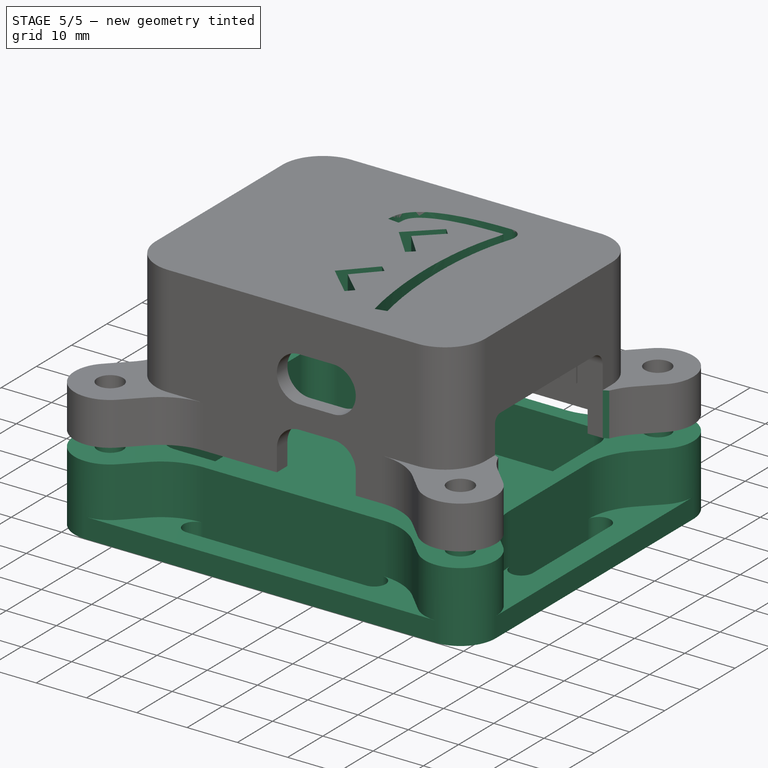
[diagram: stage 5 of 5 — iso view after this stage's code; geometry added in this stage tinted green]
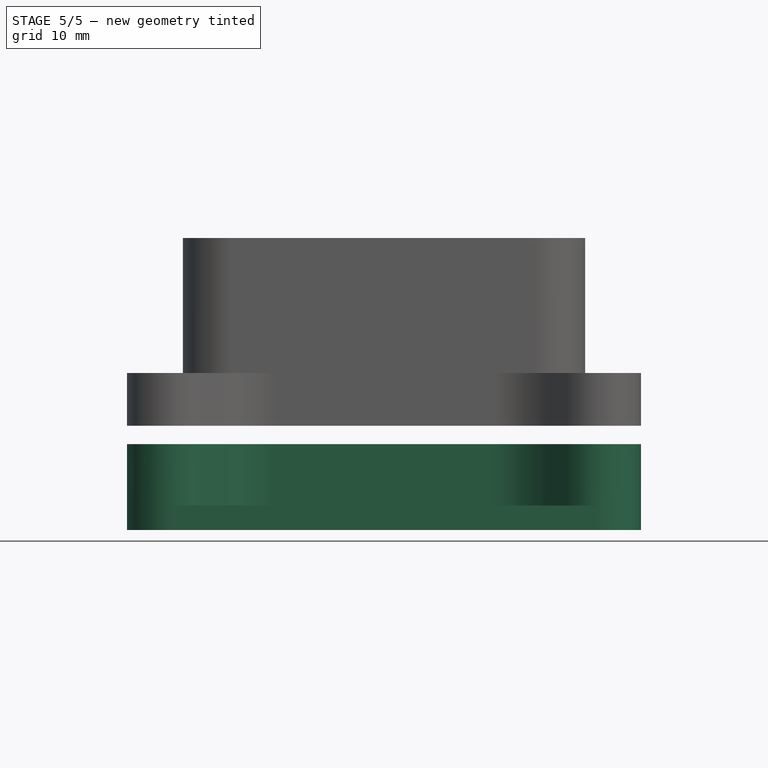
[diagram: stage 5 of 5 — front view after this stage's code; geometry added in this stage tinted green]
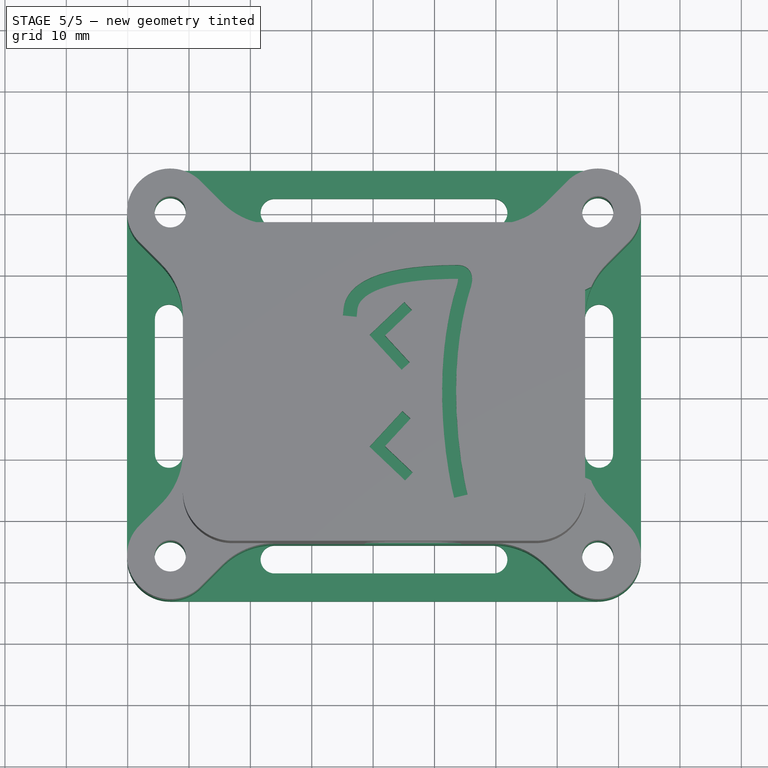
[diagram: stage 5 of 5 — top view after this stage's code; geometry added in this stage tinted green]
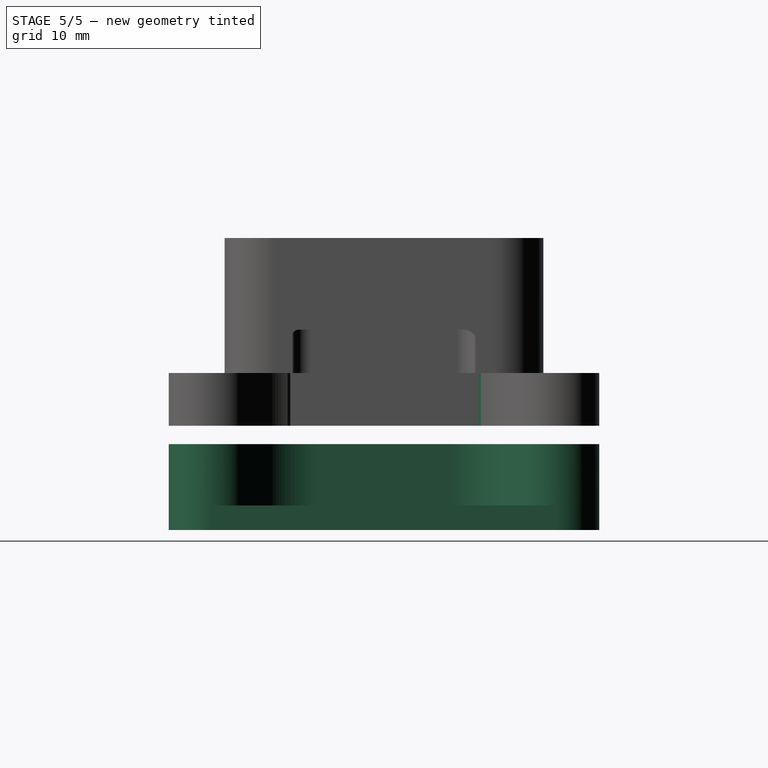
[diagram: stage 5 of 5 — right view after this stage's code; geometry added in this stage tinted green]
FEATURE [Sketcher::SketchObject] Sketch015  label="freecad forced my hand"
  ExternalGeometry = -> [Pad014]
  FullyConstrained = true
  MapMode = 5
  Support = -> [Pad014]
  sketch-geometry (12):
    g0: LineSegment StartX=0 StartY=8.128 StartZ=0 EndX=8.128 EndY=8.128 EndZ=0
    g1: LineSegment StartX=8.128 StartY=8.128 StartZ=0 EndX=8.128 EndY=0 EndZ=0
    g2: LineSegment StartX=8.128 StartY=0 StartZ=0 EndX=42.418 EndY=0 EndZ=0
    g3: LineSegment StartX=42.418 StartY=0 StartZ=0 EndX=42.418 EndY=8.128 EndZ=0
    g4: LineSegment StartX=42.418 StartY=8.128 StartZ=0 EndX=50.546 EndY=8.128 EndZ=0
    g5: LineSegment StartX=50.546 StartY=8.128 StartZ=0 EndX=50.546 EndY=35.814 EndZ=0
    g6: LineSegment StartX=50.546 StartY=35.814 StartZ=0 EndX=42.418 EndY=35.814 EndZ=0
    g7: LineSegment StartX=42.418 StartY=35.814 StartZ=0 EndX=42.418 EndY=43.942 EndZ=0
    g8: LineSegment StartX=42.418 StartY=43.942 StartZ=0 EndX=8.128 EndY=43.942 EndZ=0
    g9: LineSegment StartX=8.128 StartY=43.942 StartZ=0 EndX=8.128 EndY=35.814 EndZ=0
    g10: LineSegment StartX=8.128 StartY=35.814 StartZ=0 EndX=0 EndY=35.814 EndZ=0
    g11: LineSegment StartX=0 StartY=35.814 StartZ=0 EndX=0 EndY=8.128 EndZ=0
  constraints (28):
    c: Coincident(g0,g-10)
    c: Horizontal(g0)
    c: Coincident(g1,g0)
    c: Coincident(g1,g-9)
    c: Vertical(g1)
    c: Coincident(g2,g1)
    c: Coincident(g2,g-8)
    c: Coincident(g3,g2)
    c: Vertical(g3)
    c: Coincident(g4,g3)
    c: Coincident(g4,g-7)
    c: Horizontal(g4)
    c: Coincident(g5,g4)
    c: Coincident(g5,g-6)
    c: Coincident(g6,g5)
    c: Horizontal(g6)
    c: Coincident(g7,g6)
    c: Coincident(g7,g-5)
    c: Vertical(g7)
    c: Coincident(g8,g7)
    c: Coincident(g8,g-4)
    c: Coincident(g9,g8)
    c: Vertical(g9)
    c: Coincident(g10,g9)
    c: Coincident(g10,g-3)
    c: Horizontal(g10)
    c: Coincident(g11,g10)
    c: Coincident(g11,g0)
FEATURE [PartDesign::Pocket] Pocket
  BaseFeature = -> Pad014
  Direction = (0,0,-1)
  Length = 7
  Length2 = 5
  Placement = pos=(0,0,0) rot=(1,0,0;3.14159rad)
  Profile = -> Sketch015
  ReferenceAxis = -> Sketch015 [N_Axis]
  Type = 0
  UseCustomVector = true
  expr: Length = <<MountingFeet.Pad>>.Length
FEATURE [PartDesign::Body] Body  label="Separator"
  Group = -> [Sketch012,Pad012,Sketch013,Pad013,DatumPlane,Sketch014,Pad014,Sketch015,Pocket]
  Origin = -> Origin
  Tip = -> Pocket
FEATURE [PartDesign::ShapeBinder] ShapeBinder
  Placement = pos=(0,1e-15,-3) rot=(0,0,1;0rad)
  Support = -> [Pocket]
  TraceSupport = false
FEATURE [Sketcher::SketchObject] Sketch016  label="BottomWalls"
  ExternalGeometry = -> [ShapeBinder]
  FullyConstrained = true
  MapMode = 5
  Placement = pos=(0,2.7e-15,-10) rot=(1,0,0;3.14159rad)
  Support = -> [ShapeBinder]
  sketch-geometry (61):
    g0: LineSegment StartX=-11 StartY=-10.9408 StartZ=0 EndX=-11 EndY=-33.0012 EndZ=0
    g1: LineSegment StartX=-18.0503 StartY=1.08005 StartZ=0 EndX=-14.5147 EndY=-2.45549 EndZ=0
    g2: LineSegment StartX=-8.08005 StartY=11.0503 StartZ=0 EndX=-4.54451 EndY=7.51472 EndZ=0
    g3: LineSegment StartX=3.94077 StartY=4 StartZ=0 EndX=39.6052 EndY=4 EndZ=0
    g4: LineSegment StartX=48.0905 StartY=7.51472 StartZ=0 EndX=51.626 EndY=11.0503 EndZ=0
    g5: LineSegment StartX=61.5963 StartY=1.08005 StartZ=0 EndX=58.0607 EndY=-2.45549 EndZ=0
    g6: LineSegment StartX=54.546 StartY=-10.9408 StartZ=0 EndX=54.546 EndY=-33.0012 EndZ=0
    g7: LineSegment StartX=61.5963 StartY=-45.022 StartZ=0 EndX=58.0607 EndY=-41.4865 EndZ=0
    g8: LineSegment StartX=51.626 StartY=-54.9923 StartZ=0 EndX=48.0905 EndY=-51.4567 EndZ=0
    g9: LineSegment StartX=39.6052 StartY=-47.942 StartZ=0 EndX=3.94077 EndY=-47.942 EndZ=0
    g10: LineSegment StartX=-4.54451 StartY=-51.4567 StartZ=0 EndX=-8.08005 EndY=-54.9923 EndZ=0
    g11: LineSegment StartX=-18.0503 StartY=-45.022 StartZ=0 EndX=-14.5147 EndY=-41.4865 EndZ=0
    g12: ArcOfCircle CenterX=-13.0651 CenterY=6.06515 CenterZ=0 NormalX=0 NormalY=0 NormalZ=1 AngleXU=0 Radius=7.05 StartAngle=0.785398 EndAngle=3.92699
    g13: LineSegment StartX=-13.0651 StartY=6.06515 StartZ=0 EndX=-8.08005 EndY=11.0503 EndZ=0
    g14: LineSegment StartX=-13.0651 StartY=6.06515 StartZ=0 EndX=-18.0503 EndY=1.08005 EndZ=0
    g15: ArcOfCircle CenterX=-23 CenterY=-10.9408 CenterZ=0 NormalX=0 NormalY=0 NormalZ=1 AngleXU=0 Radius=12 StartAngle=3e-16 EndAngle=0.785398
    g16: ArcOfCircle CenterX=3.94077 CenterY=16 CenterZ=0 NormalX=0 NormalY=0 NormalZ=1 AngleXU=0 Radius=12 StartAngle=3.92699 EndAngle=4.71239
    g17: ArcOfCircle CenterX=39.6052 CenterY=16 CenterZ=0 NormalX=0 NormalY=0 NormalZ=1 AngleXU=0 Radius=12 StartAngle=4.71239 EndAngle=5.49779
    g18: ArcOfCircle CenterX=56.6111 CenterY=6.06515 CenterZ=0 NormalX=0 NormalY=0 NormalZ=1 AngleXU=0 Radius=7.05 StartAngle=5.49779 EndAngle=8.63938
    g19: ArcOfCircle CenterX=66.546 CenterY=-10.9408 CenterZ=0 NormalX=0 NormalY=0 NormalZ=1 AngleXU=0 Radius=12 StartAngle=2.35619 EndAngle=3.14159
    g20: ArcOfCircle CenterX=66.546 CenterY=-33.0012 CenterZ=0 NormalX=0 NormalY=0 NormalZ=1 AngleXU=0 Radius=12 StartAngle=3.14159 EndAngle=3.92699
    g21: ArcOfCircle CenterX=56.6111 CenterY=-50.0071 CenterZ=0 NormalX=0 NormalY=0 NormalZ=1 AngleXU=0 Radius=7.05 StartAngle=3.92699 EndAngle=7.06858
    g22: ArcOfCircle CenterX=39.6052 CenterY=-59.942 CenterZ=0 NormalX=0 NormalY=0 NormalZ=1 AngleXU=0 Radius=12 StartAngle=0.785398 EndAngle=1.5708
    g23: ArcOfCircle CenterX=3.94077 CenterY=-59.942 CenterZ=0 NormalX=0 NormalY=0 NormalZ=1 AngleXU=0 Radius=12 StartAngle=1.5708 EndAngle=2.35619
    g24: ArcOfCircle CenterX=-13.0651 CenterY=-50.0071 CenterZ=0 NormalX=0 NormalY=0 NormalZ=1 AngleXU=0 Radius=7.05 StartAngle=2.35619 EndAngle=5.49779
    g25: ArcOfCircle CenterX=-23 CenterY=-33.0012 CenterZ=0 NormalX=0 NormalY=0 NormalZ=1 AngleXU=0 Radius=12 StartAngle=5.49779 EndAngle=6.28319
    g26: LineSegment StartX=-23 StartY=-10.9408 StartZ=0 EndX=-14.5147 EndY=-2.45549 EndZ=0
    g27: LineSegment StartX=3.94077 StartY=16 StartZ=0 EndX=-4.54451 EndY=7.51472 EndZ=0
    g28: LineSegment StartX=39.6052 StartY=16 StartZ=0 EndX=39.6052 EndY=4 EndZ=0
    g29: LineSegment StartX=56.6111 StartY=6.06515 StartZ=0 EndX=51.626 EndY=11.0503 EndZ=0
    g30: LineSegment StartX=66.546 StartY=-10.9408 StartZ=0 EndX=58.0607 EndY=-2.45549 EndZ=0
    g31: LineSegment StartX=66.546 StartY=-33.0012 StartZ=0 EndX=54.546 EndY=-33.0012 EndZ=0
    g32: LineSegment StartX=56.6111 StartY=-50.0071 StartZ=0 EndX=61.5963 EndY=-45.022 EndZ=0
    g33: LineSegment StartX=39.6052 StartY=-59.942 StartZ=0 EndX=39.6052 EndY=-47.942 EndZ=0
    g34: LineSegment StartX=3.94077 StartY=-59.942 StartZ=0 EndX=3.94077 EndY=-47.942 EndZ=0
    g35: LineSegment StartX=-13.0651 StartY=-50.0071 StartZ=0 EndX=-8.08005 EndY=-54.9923 EndZ=0
    g36: LineSegment StartX=-23 StartY=-33.0012 StartZ=0 EndX=-11 EndY=-33.0012 EndZ=0
    g37: LineSegment StartX=-8 StartY=-40.642 StartZ=0 EndX=-8 EndY=-3.3 EndZ=0
    g38: LineSegment StartX=-3.7 StartY=1 StartZ=0 EndX=47.246 EndY=1 EndZ=0
    g39: LineSegment StartX=51.546 StartY=-3.3 StartZ=0 EndX=51.546 EndY=-40.642 EndZ=0
    g40: LineSegment StartX=47.246 StartY=-44.942 StartZ=0 EndX=-3.7 EndY=-44.942 EndZ=0
    g41: ArcOfCircle CenterX=-3.7 CenterY=-40.642 CenterZ=0 NormalX=0 NormalY=0 NormalZ=1 AngleXU=0 Radius=4.3 StartAngle=3.14159 EndAngle=4.71239
    g42: ArcOfCircle CenterX=47.246 CenterY=-40.642 CenterZ=0 NormalX=0 NormalY=0 NormalZ=1 AngleXU=0 Radius=4.3 StartAngle=4.71239 EndAngle=6.28319
    g43: ArcOfCircle CenterX=47.246 CenterY=-3.3 CenterZ=0 NormalX=0 NormalY=0 NormalZ=1 AngleXU=0 Radius=4.3 StartAngle=0 EndAngle=1.5708
    g44: ArcOfCircle CenterX=-3.7 CenterY=-3.3 CenterZ=0 NormalX=0 NormalY=0 NormalZ=1 AngleXU=0 Radius=4.3 StartAngle=1.5708 EndAngle=3.14159
    g45: LineSegment StartX=-3.7 StartY=-3.3 StartZ=0 EndX=-3.7 EndY=1 EndZ=0
    g46: LineSegment StartX=-3.7 StartY=-3.3 StartZ=0 EndX=-8 EndY=-3.3 EndZ=0
    g47: LineSegment StartX=47.246 StartY=-3.3 StartZ=0 EndX=47.246 EndY=1 EndZ=0
    g48: LineSegment StartX=51.546 StartY=-3.3 StartZ=0 EndX=47.246 EndY=-3.3 EndZ=0
    g49: LineSegment StartX=47.246 StartY=-40.642 StartZ=0 EndX=51.546 EndY=-40.642 EndZ=0
    g50: LineSegment StartX=47.246 StartY=-40.642 StartZ=0 EndX=47.246 EndY=-44.942 EndZ=0
    g51: LineSegment StartX=-3.7 StartY=-40.642 StartZ=0 EndX=-3.7 EndY=-44.942 EndZ=0
    g52: LineSegment StartX=-8 StartY=-40.642 StartZ=0 EndX=-3.7 EndY=-40.642 EndZ=0
    g53: LineSegment StartX=-8 StartY=-3.3 StartZ=0 EndX=-11 EndY=-3.3 EndZ=0
    g54: LineSegment StartX=-3.7 StartY=1 StartZ=0 EndX=-3.7 EndY=4 EndZ=0
    g55: LineSegment StartX=51.546 StartY=-3.3 StartZ=0 EndX=54.546 EndY=-3.3 EndZ=0
    g56: LineSegment StartX=47.246 StartY=-44.942 StartZ=0 EndX=47.246 EndY=-47.942 EndZ=0
    g57: Circle CenterX=-13.0651 CenterY=6.06515 CenterZ=0 NormalX=0 NormalY=0 NormalZ=1 AngleXU=0 Radius=2.55
    g58: Circle CenterX=56.6111 CenterY=6.06515 CenterZ=0 NormalX=0 NormalY=0 NormalZ=1 AngleXU=0 Radius=2.55
    g59: Circle CenterX=56.6111 CenterY=-50.0071 CenterZ=0 NormalX=0 NormalY=0 NormalZ=1 AngleXU=0 Radius=2.55
    g60: Circle CenterX=-13.0651 CenterY=-50.0071 CenterZ=0 NormalX=0 NormalY=0 NormalZ=1 AngleXU=0 Radius=2.55
  constraints (150):
    c: Coincident(g0,g-6)
    c: Coincident(g1,g-5)
    c: Coincident(g2,g-4)
    c: Coincident(g4,g-16)
    c: Coincident(g4,g-16)
    c: Coincident(g5,g-14)
    c: Coincident(g6,g-13)
    c: Coincident(g7,g-11)
    c: Coincident(g8,g-10)
    c: Coincident(g9,g-8)
    c: Coincident(g10,g-9)
    c: Coincident(g10,g-9)
    c: Coincident(g11,g-7)
    c: Coincident(g11,g-7)
    c: Coincident(g0,g-6)
    c: Coincident(g-8,g9)
    c: Coincident(g-10,g8)
    c: Coincident(g-11,g7)
    c: Coincident(g6,g-13)
    c: Coincident(g5,g-14)
    c: Coincident(g3,g-3)
    c: Coincident(g3,g-3)
    c: Coincident(g2,g-4)
    c: Coincident(g1,g-5)
    c: Coincident(g12,g1)
    c: Coincident(g12,g2)
    c: Coincident(g13,g12)
    c: Coincident(g13,g2)
    c: Coincident(g14,g12)
    c: Coincident(g14,g1)
    c: Perpendicular(g2,g13)
    c: Coincident(g15,g1)
    c: Coincident(g15,g0)
    c: Coincident(g16,g2)
    c: Coincident(g16,g3)
    c: Coincident(g17,g4)
    c: Coincident(g17,g3)
    c: Coincident(g18,g4)
    c: Coincident(g18,g5)
    c: Coincident(g19,g5)
    c: Coincident(g19,g6)
    c: Coincident(g20,g6)
    c: Coincident(g20,g7)
    c: Coincident(g21,g7)
    c: Coincident(g21,g8)
    c: Coincident(g22,g9)
    c: Coincident(g22,g8)
    c: Coincident(g23,g10)
    c: Coincident(g23,g9)
    c: Coincident(g24,g11)
    c: Coincident(g24,g10)
    c: Coincident(g25,g0)
    c: Coincident(g25,g11)
    c: Coincident(g26,g15)
    c: Coincident(g26,g1)
    c: Coincident(g27,g16)
    c: Coincident(g27,g2)
    c: Coincident(g28,g17)
    c: Coincident(g28,g3)
    c: Coincident(g29,g18)
    c: Coincident(g29,g4)
    c: Coincident(g30,g19)
    c: Coincident(g30,g5)
    c: Coincident(g31,g20)
    c: Coincident(g31,g6)
    c: Coincident(g32,g21)
    c: Coincident(g32,g7)
    c: Coincident(g33,g22)
    c: Coincident(g33,g9)
    c: Coincident(g34,g23)
    c: Coincident(g34,g9)
    c: Coincident(g35,g24)
    c: Coincident(g35,g10)
    c: Coincident(g36,g25)
    c: Coincident(g36,g0)
    c: Perpendicular(g1,g26)
    c: Perpendicular(g2,g27)
    c: Perpendicular(g3,g28)
    c: Perpendicular(g4,g29)
    c: Perpendicular(g5,g30)
    c: Perpendicular(g7,g32)
    c: Perpendicular(g6,g31)
    c: Perpendicular(g9,g33)
    c: Perpendicular(g9,g34)
    c: Perpendicular(g10,g35)
    c: Perpendicular(g0,g36)
    c: Parallel(g37,g0)
    c: Parallel(g38,g3)
    c: Parallel(g39,g6)
    c: Parallel(g40,g9)
    c: Equal(g39,g37)
    c: Equal(g40,g38)
    c: Coincident(g41,g37)
    c: Coincident(g41,g40)
    c: Coincident(g42,g40)
    c: Coincident(g42,g39)
    c: Coincident(g43,g38)
    c: Coincident(g43,g39)
    c: Coincident(g44,g38)
    c: Coincident(g44,g37)
    c: Coincident(g45,g44)
    c: Coincident(g45,g38)
    c: Coincident(g46,g44)
    c: Coincident(g46,g37)
    c: Coincident(g47,g43)
    c: Coincident(g47,g38)
    c: Coincident(g48,g39)
    c: Coincident(g48,g43)
    c: Coincident(g49,g42)
    c: Coincident(g49,g39)
    c: Coincident(g50,g42)
    c: Coincident(g50,g40)
    c: Coincident(g51,g41)
    c: Coincident(g51,g40)
    c: Coincident(g52,g41)
    c: Perpendicular(g38,g45)
    c: Perpendicular(g46,g37)
    c: Perpendicular(g38,g47)
    c: Perpendicular(g39,g48)
    c: Perpendicular(g40,g50)
    c: Perpendicular(g39,g49)
    c: Perpendicular(g40,g51)
    c: Coincident(g52,g37)
    c: Perpendicular(g37,g52)
    c: Coincident(g53,g37)
    c: PointOnObject(g53,g0)
    c: Coincident(g54,g38)
    c: PointOnObject(g54,g3)
    c: Coincident(g55,g39)
    c: PointOnObject(g55,g6)
    c: Coincident(g56,g40)
    c: PointOnObject(g56,g9)
    c: Perpendicular(g37,g53)
    c: Perpendicular(g38,g54)
    c: Perpendicular(g39,g55)
    c: Perpendicular(g40,g56)
    c: Equal(g45,g47)
    c: Equal(g56,g54)
    c: Equal(g53,g55)
    c: Equal(g55,g54)
    c: Distance(g53) = 3
    c: Distance(g45) = 4.3
    c: Coincident(g57,g12)
    c: Tangent(g57,g-18)
    c: Coincident(g58,g18)
    c: Tangent(g58,g-17)
    c: Coincident(g59,g21)
    c: Tangent(g59,g-12)
    c: Coincident(g60,g24)
    c: Tangent(g60,g-19)
FEATURE [PartDesign::Pad] Pad015  label="BottomWalls.Pad"
  Direction = (0,5e-16,-1)
  Length = 10
  Length2 = 10
  Placement = pos=(0,1e-15,-3) rot=(0,0,1;0rad)
  Profile = -> Sketch016
  ReferenceAxis = -> Sketch016 [N_Axis]
  Type = 0
FEATURE [Sketcher::SketchObject] Sketch017  label="BottomCover"
  ExternalGeometry = -> [Pad015]
  FullyConstrained = true
  MapMode = 5
  Placement = pos=(0,9.2e-15,-20) rot=(1,0,0;3.14159rad)
  Support = -> [Pad015]
  sketch-geometry (65):
    g0: LineSegment StartX=3.94077 StartY=4 StartZ=0 EndX=39.6052 EndY=4 EndZ=0
    g1: LineSegment StartX=54.546 StartY=-10.9408 StartZ=0 EndX=54.546 EndY=-33.0012 EndZ=0
    g2: LineSegment StartX=39.6052 StartY=-47.942 StartZ=0 EndX=3.94077 EndY=-47.942 EndZ=0
    g3: LineSegment StartX=-11 StartY=-33.0012 StartZ=0 EndX=-11 EndY=-10.9408 EndZ=0
    g4: ArcOfCircle CenterX=-13.2788 CenterY=-10.9408 CenterZ=0 NormalX=0 NormalY=0 NormalZ=1 AngleXU=0 Radius=2.27879 StartAngle=0 EndAngle=3.14159
    g5: ArcOfCircle CenterX=3.94077 CenterY=6.27879 CenterZ=0 NormalX=0 NormalY=0 NormalZ=1 AngleXU=0 Radius=2.27879 StartAngle=1.5708 EndAngle=4.71239
    g6: ArcOfCircle CenterX=39.6052 CenterY=6.27879 CenterZ=0 NormalX=0 NormalY=0 NormalZ=1 AngleXU=0 Radius=2.27879 StartAngle=4.71239 EndAngle=7.85398
    g7: ArcOfCircle CenterX=56.8248 CenterY=-10.9408 CenterZ=0 NormalX=0 NormalY=0 NormalZ=1 AngleXU=0 Radius=2.27879 StartAngle=-9e-16 EndAngle=3.14159
    g8: ArcOfCircle CenterX=56.8248 CenterY=-33.0012 CenterZ=0 NormalX=0 NormalY=0 NormalZ=1 AngleXU=0 Radius=2.27879 StartAngle=3.14159 EndAngle=6.28319
    g9: ArcOfCircle CenterX=39.6052 CenterY=-50.2208 CenterZ=0 NormalX=0 NormalY=0 NormalZ=1 AngleXU=0 Radius=2.27879 StartAngle=4.71239 EndAngle=7.85398
    g10: ArcOfCircle CenterX=3.94077 CenterY=-50.2208 CenterZ=0 NormalX=0 NormalY=0 NormalZ=1 AngleXU=0 Radius=2.27879 StartAngle=1.5708 EndAngle=4.71239
    g11: ArcOfCircle CenterX=-13.2788 CenterY=-33.0012 CenterZ=0 NormalX=0 NormalY=0 NormalZ=1 AngleXU=0 Radius=2.27879 StartAngle=3.14159 EndAngle=6.28319
    g12: LineSegment StartX=-15.5576 StartY=-10.9408 StartZ=0 EndX=-15.5576 EndY=-33.0012 EndZ=0
    g13: LineSegment StartX=59.1036 StartY=-10.9408 StartZ=0 EndX=59.1036 EndY=-33.0012 EndZ=0
    g14: LineSegment StartX=39.6052 StartY=8.55757 StartZ=0 EndX=3.94077 EndY=8.55757 EndZ=0
    g15: LineSegment StartX=3.94077 StartY=-52.4996 StartZ=0 EndX=39.6052 EndY=-52.4996 EndZ=0
    g16: LineSegment StartX=39.6052 StartY=-52.4996 StartZ=0 EndX=39.6052 EndY=-47.942 EndZ=0
    g17: LineSegment StartX=3.94077 StartY=-52.4996 StartZ=0 EndX=3.94077 EndY=-47.942 EndZ=0
    g18: LineSegment StartX=59.1036 StartY=-33.0012 StartZ=0 EndX=54.546 EndY=-33.0012 EndZ=0
    g19: LineSegment StartX=54.546 StartY=-10.9408 StartZ=0 EndX=59.1036 EndY=-10.9408 EndZ=0
    g20: LineSegment StartX=39.6052 StartY=4 StartZ=0 EndX=39.6052 EndY=8.55757 EndZ=0
    g21: LineSegment StartX=3.94077 StartY=8.55757 StartZ=0 EndX=3.94077 EndY=4 EndZ=0
    g22: LineSegment StartX=-11 StartY=-10.9408 StartZ=0 EndX=-15.5576 EndY=-10.9408 EndZ=0
    g23: LineSegment StartX=-15.5576 StartY=-33.0012 StartZ=0 EndX=-11 EndY=-33.0012 EndZ=0
    g24: ArcOfCircle CenterX=56.6111 CenterY=6.06515 CenterZ=0 NormalX=0 NormalY=0 NormalZ=1 AngleXU=0 Radius=7.05 StartAngle=0 EndAngle=1.5708
    g25: ArcOfCircle CenterX=56.6111 CenterY=-50.0071 CenterZ=0 NormalX=0 NormalY=0 NormalZ=1 AngleXU=0 Radius=7.05 StartAngle=4.71239 EndAngle=6.28319
    g26: ArcOfCircle CenterX=-13.0651 CenterY=-50.0071 CenterZ=0 NormalX=0 NormalY=0 NormalZ=1 AngleXU=0 Radius=7.05 StartAngle=3.14159 EndAngle=4.71239
    g27: LineSegment StartX=-13.0651 StartY=13.1151 StartZ=0 EndX=56.6111 EndY=13.1151 EndZ=0
    g28: LineSegment StartX=63.6611 StartY=6.06515 StartZ=0 EndX=63.6611 EndY=-50.0071 EndZ=0
    g29: LineSegment StartX=56.6111 StartY=-57.0571 StartZ=0 EndX=-13.0651 EndY=-57.0571 EndZ=0
    g30: LineSegment StartX=-20.1151 StartY=-50.0071 StartZ=0 EndX=-20.1151 EndY=6.06515 EndZ=0
    g31: LineSegment StartX=56.6111 StartY=-50.0071 StartZ=0 EndX=56.6111 EndY=-57.0571 EndZ=0
    g32: LineSegment StartX=63.6611 StartY=-50.0071 StartZ=0 EndX=56.6111 EndY=-50.0071 EndZ=0
    g33: LineSegment StartX=3.94077 StartY=8.55757 StartZ=0 EndX=3.94077 EndY=13.1151 EndZ=0
    g34: Circle CenterX=-13.0651 CenterY=6.06515 CenterZ=0 NormalX=0 NormalY=0 NormalZ=1 AngleXU=0 Radius=5
    g35: Circle CenterX=56.6111 CenterY=6.06515 CenterZ=0 NormalX=0 NormalY=0 NormalZ=1 AngleXU=0 Radius=5
    g36: Circle CenterX=56.6111 CenterY=-50.0071 CenterZ=0 NormalX=0 NormalY=0 NormalZ=1 AngleXU=0 Radius=5
    g37: Circle CenterX=-13.0651 CenterY=-50.0071 CenterZ=0 NormalX=0 NormalY=0 NormalZ=1 AngleXU=0 Radius=5
    g38: LineSegment StartX=-13.0651 StartY=6.06515 StartZ=0 EndX=56.6111 EndY=6.06515 EndZ=0
    g39: LineSegment StartX=-13.0651 StartY=-50.0071 StartZ=0 EndX=56.6111 EndY=-50.0071 EndZ=0
    g40: LineSegment StartX=-18.0651 StartY=-50.0071 StartZ=0 EndX=-15.5651 EndY=-45.677 EndZ=0
    g41: LineSegment StartX=-15.5651 StartY=-45.677 StartZ=0 EndX=-10.5651 EndY=-45.677 EndZ=0
    g42: LineSegment StartX=-10.5651 StartY=-45.677 StartZ=0 EndX=-8.06515 EndY=-50.0071 EndZ=0
    g43: LineSegment StartX=-8.06515 StartY=-50.0071 StartZ=0 EndX=-10.5651 EndY=-54.3373 EndZ=0
    g44: LineSegment StartX=-10.5651 StartY=-54.3373 StartZ=0 EndX=-15.5651 EndY=-54.3373 EndZ=0
    g45: LineSegment StartX=-15.5651 StartY=-54.3373 StartZ=0 EndX=-18.0651 EndY=-50.0071 EndZ=0
    g46: LineSegment StartX=51.6111 StartY=-50.0071 StartZ=0 EndX=54.1111 EndY=-45.677 EndZ=0
    g47: LineSegment StartX=54.1111 StartY=-45.677 StartZ=0 EndX=59.1111 EndY=-45.677 EndZ=0
    g48: LineSegment StartX=59.1111 StartY=-45.677 StartZ=0 EndX=61.6111 EndY=-50.0071 EndZ=0
    g49: LineSegment StartX=61.6111 StartY=-50.0071 StartZ=0 EndX=59.1111 EndY=-54.3373 EndZ=0
    g50: LineSegment StartX=59.1111 StartY=-54.3373 StartZ=0 EndX=54.1111 EndY=-54.3373 EndZ=0
    g51: LineSegment StartX=54.1111 StartY=-54.3373 StartZ=0 EndX=51.6111 EndY=-50.0071 EndZ=0
    g52: LineSegment StartX=51.6111 StartY=6.06515 StartZ=0 EndX=54.1111 EndY=10.3953 EndZ=0
    g53: LineSegment StartX=54.1111 StartY=10.3953 StartZ=0 EndX=59.1111 EndY=10.3953 EndZ=0
    g54: LineSegment StartX=59.1111 StartY=10.3953 StartZ=0 EndX=61.6111 EndY=6.06515 EndZ=0
    g55: LineSegment StartX=61.6111 StartY=6.06515 StartZ=0 EndX=59.1111 EndY=1.73502 EndZ=0
    g56: LineSegment StartX=59.1111 StartY=1.73502 StartZ=0 EndX=54.1111 EndY=1.73502 EndZ=0
    g57: LineSegment StartX=54.1111 StartY=1.73502 StartZ=0 EndX=51.6111 EndY=6.06515 EndZ=0
    g58: LineSegment StartX=-18.0651 StartY=6.06515 StartZ=0 EndX=-15.5651 EndY=10.3953 EndZ=0
    g59: LineSegment StartX=-15.5651 StartY=10.3953 StartZ=0 EndX=-10.5651 EndY=10.3953 EndZ=0
    g60: LineSegment StartX=-10.5651 StartY=10.3953 StartZ=0 EndX=-8.06515 EndY=6.06515 EndZ=0
    g61: LineSegment StartX=-8.06515 StartY=6.06515 StartZ=0 EndX=-10.5651 EndY=1.73502 EndZ=0
    g62: LineSegment StartX=-10.5651 StartY=1.73502 StartZ=0 EndX=-15.5651 EndY=1.73502 EndZ=0
    g63: LineSegment StartX=-15.5651 StartY=1.73502 StartZ=0 EndX=-18.0651 EndY=6.06515 EndZ=0
    g64: ArcOfCircle CenterX=-13.0651 CenterY=6.06515 CenterZ=0 NormalX=0 NormalY=0 NormalZ=1 AngleXU=0 Radius=7.05 StartAngle=1.5708 EndAngle=3.14159
  constraints (171):
    c: Coincident(g0,g-4)
    c: Coincident(g0,g-4)
    c: Coincident(g1,g-6)
    c: Coincident(g1,g-6)
    c: Coincident(g2,g-9)
    c: Coincident(g2,g-9)
    c: Coincident(g3,g-3)
    c: Coincident(g3,g-3)
    c: Coincident(g4,g3)
    c: Coincident(g5,g0)
    c: Coincident(g6,g0)
    c: Coincident(g7,g1)
    c: Coincident(g8,g1)
    c: Coincident(g9,g2)
    c: Coincident(g10,g2)
    c: Coincident(g11,g3)
    c: Coincident(g12,g4)
    c: Coincident(g12,g11)
    c: Coincident(g13,g7)
    c: Coincident(g13,g8)
    c: Coincident(g14,g6)
    c: Coincident(g14,g5)
    c: Coincident(g15,g10)
    c: Coincident(g15,g9)
    c: Coincident(g16,g9)
    c: Coincident(g16,g2)
    c: Coincident(g17,g10)
    c: Coincident(g17,g2)
    c: Coincident(g18,g8)
    c: Coincident(g18,g1)
    c: Coincident(g19,g1)
    c: Coincident(g19,g7)
    c: Coincident(g20,g0)
    c: Coincident(g20,g6)
    c: Coincident(g21,g5)
    c: Coincident(g21,g0)
    c: Coincident(g22,g3)
    c: Coincident(g22,g4)
    c: Coincident(g23,g11)
    c: Coincident(g23,g3)
    c: Equal(g22,g23)
    c: Equal(g21,g20)
    c: Equal(g19,g18)
    c: Equal(g16,g17)
    c: Perpendicular(g2,g17)
    c: PointOnObject(g10,g17)
    c: PointOnObject(g9,g16)
    c: PointOnObject(g11,g23)
    c: PointOnObject(g4,g22)
    c: PointOnObject(g5,g21)
    c: PointOnObject(g6,g20)
    c: PointOnObject(g7,g19)
    c: PointOnObject(g8,g18)
    c: Perpendicular(g1,g19)
    c: Perpendicular(g1,g18)
    c: Perpendicular(g3,g23)
    c: Perpendicular(g3,g22)
    c: Perpendicular(g0,g21)
    c: Perpendicular(g0,g20)
    c: Equal(g23,g17)
    c: Equal(g16,g18)
    c: Equal(g22,g21)
    c: Coincident(g24,g-7)
    c: Coincident(g25,g-8)
    c: Coincident(g26,g-10)
    c: Perpendicular(g29,g30)
    c: Perpendicular(g28,g29)
    c: Perpendicular(g27,g28)
    c: Coincident(g31,g25)
    c: Coincident(g32,g25)
    c: Coincident(g32,g25)
    c: Coincident(g33,g5)
    c: PointOnObject(g33,g27)
    c: Parallel(g33,g21)
    c: Equal(g33,g21)
    c: Coincident(g31,g25)
    c: Coincident(g35,g24)
    c: Coincident(g36,g25)
    c: Coincident(g37,g26)
    c: Coincident(g38,g24)
    c: Coincident(g39,g26)
    c: Coincident(g39,g25)
    c: Perpendicular(g2,g16)
    c: PointOnObject(g40,g37)
    c: PointOnObject(g40,g37)
    c: Coincident(g40,g41)
    c: PointOnObject(g41,g37)
    c: Coincident(g41,g42)
    c: PointOnObject(g42,g37)
    c: Coincident(g42,g43)
    c: PointOnObject(g43,g37)
    c: Coincident(g43,g44)
    c: PointOnObject(g44,g37)
    c: Coincident(g44,g45)
    c: Coincident(g45,g40)
    c: PointOnObject(g46,g36)
    c: PointOnObject(g46,g36)
    c: Coincident(g46,g47)
    c: PointOnObject(g47,g36)
    c: Coincident(g47,g48)
    c: PointOnObject(g48,g36)
    c: Coincident(g48,g49)
    c: PointOnObject(g49,g36)
    c: Coincident(g49,g50)
    c: PointOnObject(g50,g36)
    c: Coincident(g50,g51)
    c: Coincident(g51,g46)
    c: PointOnObject(g52,g35)
    c: PointOnObject(g52,g35)
    c: Coincident(g52,g53)
    c: PointOnObject(g53,g35)
    c: Coincident(g53,g54)
    c: PointOnObject(g54,g35)
    c: Coincident(g54,g55)
    c: PointOnObject(g55,g35)
    c: Coincident(g55,g56)
    c: PointOnObject(g56,g35)
    c: Coincident(g56,g57)
    c: Coincident(g57,g52)
    c: PointOnObject(g58,g34)
    c: PointOnObject(g58,g34)
    c: Coincident(g58,g59)
    c: PointOnObject(g59,g34)
    c: Coincident(g59,g60)
    c: PointOnObject(g60,g34)
    c: Coincident(g60,g61)
    c: Coincident(g61,g62)
    c: PointOnObject(g62,g34)
    c: Coincident(g62,g63)
    c: Coincident(g63,g58)
    c: PointOnObject(g61,g34)
    c: Equal(g59,g60)
    c: Equal(g60,g61)
    c: Equal(g61,g62)
    c: Equal(g62,g63)
    c: Equal(g63,g58)
    c: Equal(g57,g52)
    c: Equal(g52,g53)
    c: Equal(g53,g54)
    c: Equal(g54,g55)
    c: Equal(g55,g56)
    c: Equal(g47,g48)
    c: Equal(g48,g49)
    c: Equal(g49,g50)
    c: Equal(g51,g50)
    c: Equal(g51,g46)
    c: Equal(g43,g42)
    c: Equal(g42,g41)
    c: Equal(g41,g40)
    c: Equal(g40,g45)
    c: Equal(g45,g44)
    c: Parallel(g41,g39)
    c: Parallel(g47,g39)
    c: Parallel(g53,g38)
    c: Parallel(g59,g38)
    c: Equal(g34,g35)
    c: Equal(g35,g36)
    c: Equal(g37,g36)
    c: PointOnObject(g27,g-19)
    c: Coincident(g64,g34)
    c: Coincident(g38,g64)
    c: Coincident(g-19,g64)
    c: Tangent(g27,g24) = 1.5708
    c: Tangent(g28,g24) = 1.5708
    c: Tangent(g28,g25) = 1.5708
    c: Tangent(g29,g25) = 1.5708
    c: Tangent(g30,g26) = 1.5708
    c: Tangent(g64,g30) = 1.5708
    c: Tangent(g64,g27) = 1.5708
    c: Tangent(g29,g26) = 1.5708
    c: Diameter(g34) = 10  'ScrewHeadOuterDiameter'
FEATURE [PartDesign::Pad] Pad016  label="BottomCover.Pad"
  BaseFeature = -> Pad015
  Direction = (0,7e-16,-1)
  Length = 4
  Length2 = 10
  Placement = pos=(0,1e-15,-3) rot=(0,0,1;0rad)
  Profile = -> Sketch017
  ReferenceAxis = -> Sketch017 [N_Axis]
  Type = 0
FEATURE [PartDesign::Pocket] Pocket005
  BaseFeature = -> Pocket004
  Direction = (-1,-2.01e-14,1e-16)
  Length = 5
  Length2 = 5
  Placement = pos=(0,0,0) rot=(1,0,0;3.14159rad)
  Profile = -> Sketch024
  ReferenceAxis = -> Sketch024 [N_Axis]
  Reversed = true
  TaperAngle = 25
  Type = 0
FEATURE [Sketcher::SketchObject] Sketch025
  FullyConstrained = true
  MapMode = 5
  Placement = pos=(0,-1.46e-14,23.6) rot=(0,0,1;0rad)
  Support = -> [Pocket005]
FEATURE [Part::Feature] path2
  Placement = pos=(95.348,-2.74394,-4e-15) rot=(0,0,-1;1.5708rad)
  shape: bbox 14.09 x 22.64 x 2e-07 mm, 1 faces, 0 solids (baked)
FEATURE [Part::Feature] path003
  Placement = pos=(95.348,-2.74394,-4e-15) rot=(0,0,-1;1.5708rad)
  shape: bbox 13.82 x 22.11 x 2e-07 mm, 1 faces, 0 solids (baked)
FEATURE [Part::Feature] path3
  Placement = pos=(95.348,-2.74394,-4e-15) rot=(0,0,-1;1.5708rad)
  shape: bbox 42.44 x 75.98 x 2e-07 mm, 1 faces, 0 solids (baked)
FEATURE [Part::FeaturePython] Clone  label="path004"  # Draft clone (typed FeaturePython)
  AttacherType = Attacher::AttachEngine3D
  Fuse = false
  Objects = -> [path2,path003,path3]
  Placement = pos=(48.1437,-4.5279,23.6) rot=(0,0,1;3.14159rad)
  Scale = (0.5,0.5,0.5)
FEATURE [PartDesign::ShapeBinder] ShapeBinder006
  Support = -> [Clone]
  TraceSupport = false
FEATURE [PartDesign::Pocket] Pocket006
  BaseFeature = -> Pocket005
  Direction = (0,0,-0.0175011)
  Length = 6
  Length2 = 5
  Placement = pos=(0,0,0) rot=(1,0,0;3.14159rad)
  Profile = -> ShapeBinder006
  Type = 0
FEATURE [PartDesign::Pocket] Pocket007
  BaseFeature = -> Pocket006
  Direction = (0,7e-16,-1)
  Length = 5
  Length2 = 5
  Placement = pos=(0,0,0) rot=(1,0,0;3.14159rad)
  Profile = -> Sketch021
  ReferenceAxis = -> Sketch021 [N_Axis]
  Reversed = true
  Type = 0
FEATURE [PartDesign::Body] Body003  label="Top"
  Group = -> [ShapeBinder001,Sketch018,Pad017,ShapeBinder002,Sketch019,Pad018,Sketch020,Pad019,ShapeBinder003,Sketch021,ShapeBinder004,Sketch022,Pocket002,Sketch023,Pocket003,ShapeBinder005,Sketch024,Pocket004,Pocket005,Sketch025,ShapeBinder006,Pocket006,Pocket007]
  Origin = -> Origin003
  Tip = -> Pocket007
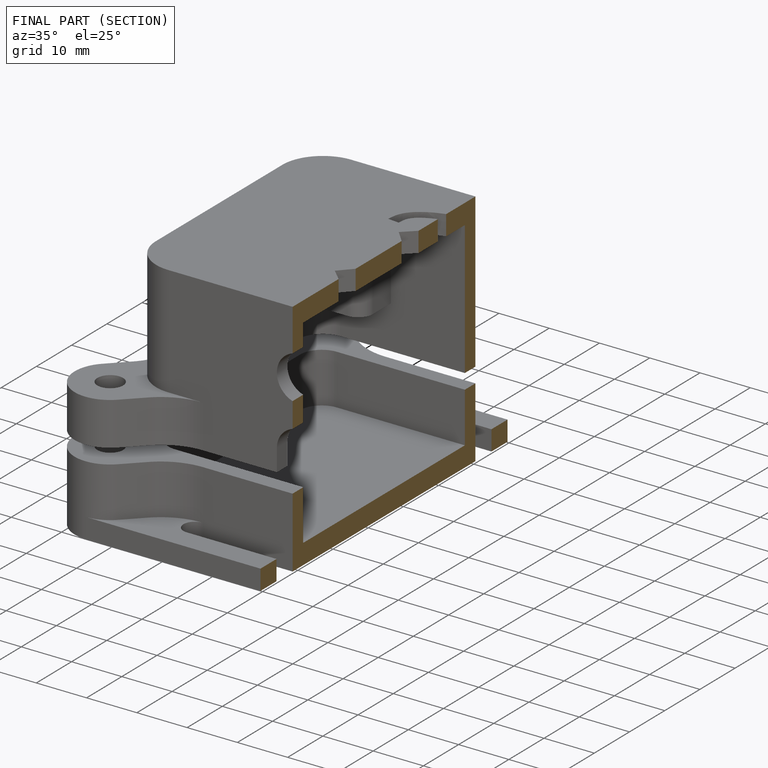
[diagram: finished part — half-section view (interior)]
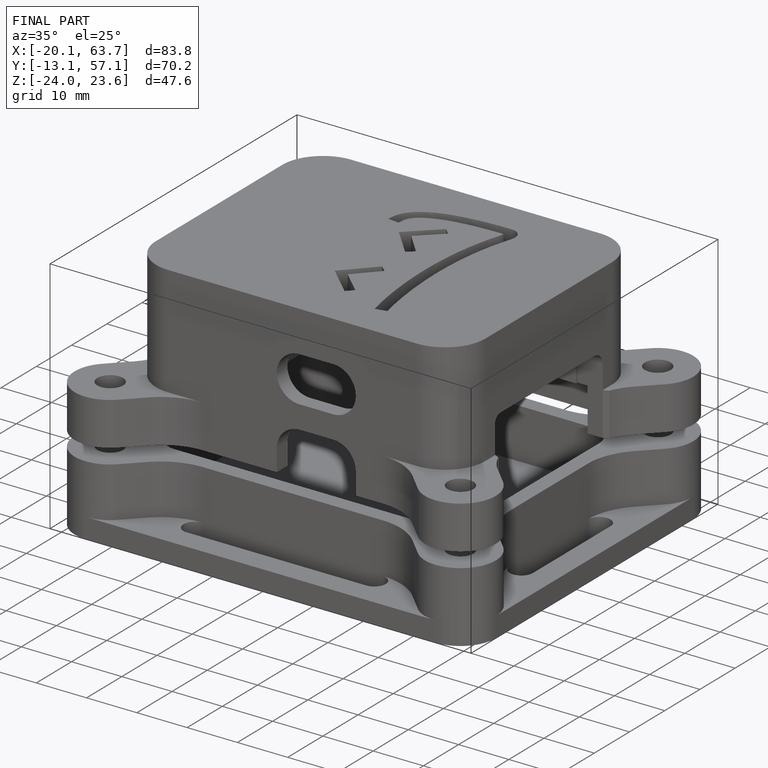
[diagram: finished part — iso view with bounding-box wireframe]
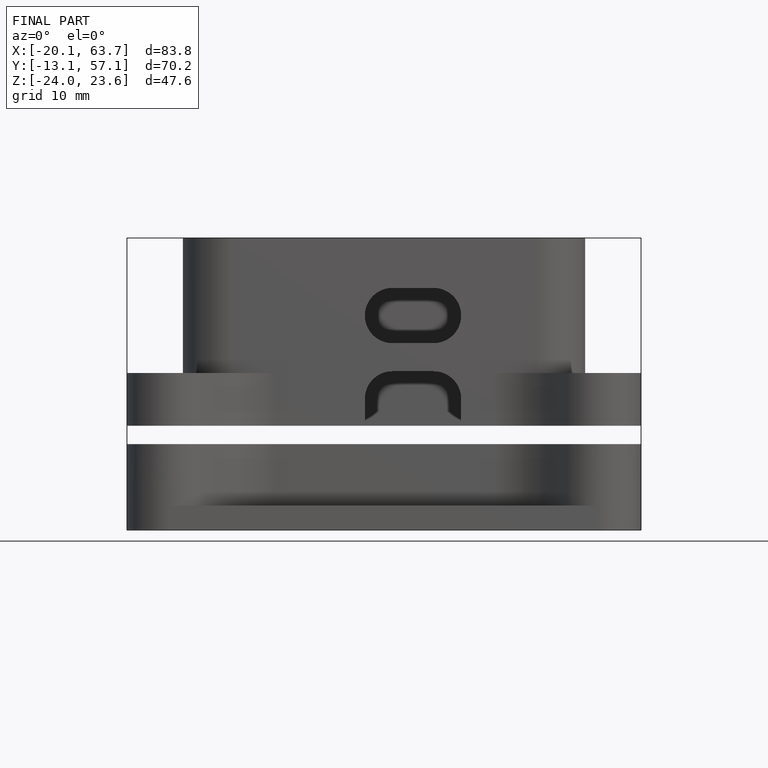
[diagram: finished part — front view with bounding-box wireframe]
